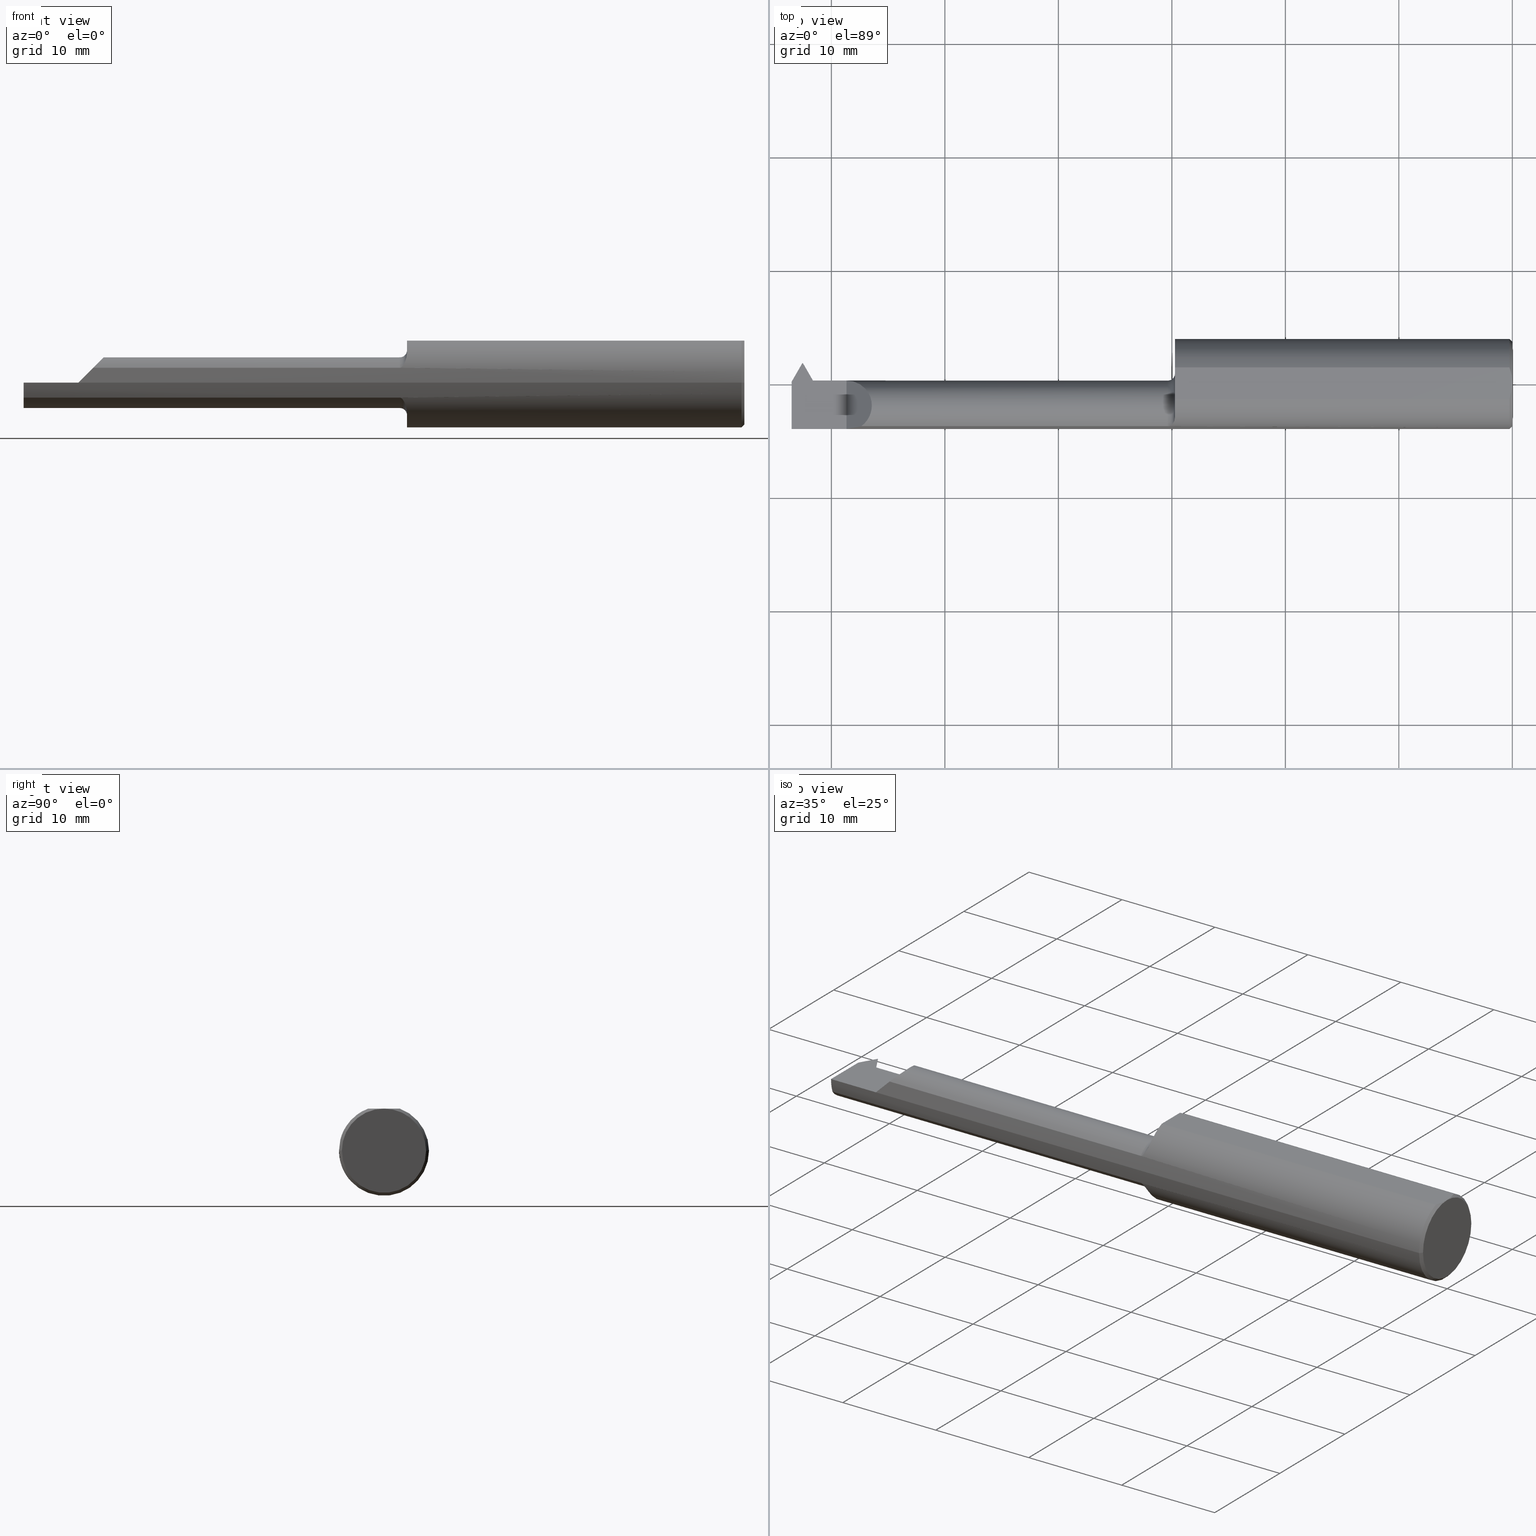
[diagram: canonical four-view strip — front | top / right | iso, engineering-drawing reading convention]
A machine part, canonical four-view strip (front | top / right | iso — engineering-drawing reading convention). The complete STEP part file that produces these views, byte-faithful:
ISO-10303-21;
HEADER;
FILE_DESCRIPTION (( 'STEP AP203' ),
    '1' );
FILE_NAME ('231792-LHTT2301250.STEP',
    '2025-01-23T22:19:12',
    ( '' ),
    ( '' ),
    'SwSTEP 2.0',
    'SolidWorks 2024',
    '' );
FILE_SCHEMA (( 'CONFIG_CONTROL_DESIGN' ));
ENDSEC;

DATA;
#1 = DIRECTION ( 'NONE',  ( 1.000000000000000000, 1.224646799147352961E-16, -0.000000000000000000 ) ) ;
#2 = AXIS2_PLACEMENT_3D ( 'NONE', #761, #17, #563 ) ;
#3 = ORIENTED_EDGE ( 'NONE', *, *, #285, .T. ) ;
#4 = PERSON_AND_ORGANIZATION_ROLE ( 'creator' ) ;
#5 = CARTESIAN_POINT ( 'NONE',  ( -1.188181177459758375, -0.1461969813683944575, 0.05472577389936161135 ) ) ;
#6 = CARTESIAN_POINT ( 'NONE',  ( -2.500000000000000000, 0.01189999999999989504, 8.875653457662611807E-19 ) ) ;
#7 = ADVANCED_FACE ( 'NONE', ( #716 ), #581, .F. ) ;
#8 = EDGE_LOOP ( 'NONE', ( #854, #38, #601, #480 ) ) ;
#9 = AXIS2_PLACEMENT_3D ( 'NONE', #339, #773, #42 ) ;
#10 = CARTESIAN_POINT ( 'NONE',  ( -1.185083227087313507, -0.1449949082926790811, 0.05786810286899488065 ) ) ;
#11 = DIRECTION ( 'NONE',  ( 0.5000000000000074385, -0.8660254037844342667, 0.000000000000000000 ) ) ;
#12 = EDGE_CURVE ( 'NONE', #552, #257, #587, .T. ) ;
#13 = ORIENTED_EDGE ( 'NONE', *, *, #360, .T. ) ;
#14 = CARTESIAN_POINT ( 'NONE',  ( -1.189346208252527015, -0.1465601710296003668, -0.05373964015989929344 ) ) ;
#15 = DIRECTION ( 'NONE',  ( -0.5000000000000160982, 0.000000000000000000, -0.8660254037844292707 ) ) ;
#16 = ORIENTED_EDGE ( 'NONE', *, *, #360, .F. ) ;
#17 = DIRECTION ( 'NONE',  ( 1.000000000000000000, 1.224646799147352961E-16, -0.000000000000000000 ) ) ;
#18 = CARTESIAN_POINT ( 'NONE',  ( -2.421108983848621943, 0.01189999999999979963, 0.000000000000000000 ) ) ;
#19 = AXIS2_PLACEMENT_3D ( 'NONE', #29, #431, #696 ) ;
#20 = ORIENTED_EDGE ( 'NONE', *, *, #451, .F. ) ;
#21 = VECTOR ( 'NONE', #859, 39.37007874015748854 ) ;
#22 = ADVANCED_FACE ( 'NONE', ( #452 ), #330, .T. ) ;
#23 = CARTESIAN_POINT ( 'NONE',  ( -1.170000000000000151, -0.1142537450715592345, -0.1063639588254146062 ) ) ;
#24 = CARTESIAN_POINT ( 'NONE',  ( -2.500000000000000000, -0.1561000000000000720, 8.875653457662609881E-19 ) ) ;
#25 = ORIENTED_EDGE ( 'NONE', *, *, #247, .F. ) ;
#26 = CARTESIAN_POINT ( 'NONE',  ( 6.904318952737417485E-16, 0.009396510398413217627, 0.1461000000000000631 ) ) ;
#27 = CC_DESIGN_PERSON_AND_ORGANIZATION_ASSIGNMENT ( #746, #337, ( #674 ) ) ;
#28 = ADVANCED_FACE ( 'NONE', ( #464 ), #726, .F. ) ;
#29 = CARTESIAN_POINT ( 'NONE',  ( -1.170000000000000151, 1.016456843292302760E-16, 0.000000000000000000 ) ) ;
#30 = EDGE_LOOP ( 'NONE', ( #501, #145, #538, #405 ) ) ;
#31 = VECTOR ( 'NONE', #300, 39.37007874015748143 ) ;
#32 = PLANE ( 'NONE',  #258 ) ;
#33 = DIRECTION ( 'NONE',  ( -1.000000000000000000, -1.301231752219315598E-17, -0.000000000000000000 ) ) ;
#34 = VERTEX_POINT ( 'NONE', #251 ) ;
#35 = DIRECTION ( 'NONE',  ( 1.224646799147352961E-16, -1.000000000000000000, -5.720810840667189241E-34 ) ) ;
#36 = CC_DESIGN_APPROVAL ( #350, ( #674 ) ) ;
#37 = CARTESIAN_POINT ( 'NONE',  ( -2.258241905890881807, -0.1472695137976346991, 0.05175809410911773323 ) ) ;
#38 = ORIENTED_EDGE ( 'NONE', *, *, #774, .F. ) ;
#39 = EDGE_CURVE ( 'NONE', #643, #281, #121, .T. ) ;
#40 = PERSON_AND_ORGANIZATION ( #783, #701 ) ;
#41 = DIRECTION ( 'NONE',  ( 0.5000000000000062172, -0.8660254037844350439, -7.288689336845252781E-15 ) ) ;
#42 = DIRECTION ( 'NONE',  ( -1.230512889522860364E-16, 1.000000000000000000, 0.000000000000000000 ) ) ;
#43 = CARTESIAN_POINT ( 'NONE',  ( -2.421108983848621943, -0.07610000000000008424, 0.000000000000000000 ) ) ;
#44 = DIRECTION ( 'NONE',  ( 1.000000000000000000, 0.000000000000000000, -0.000000000000000000 ) ) ;
#45 = VERTEX_POINT ( 'NONE', #320 ) ;
#46 = AXIS2_PLACEMENT_3D ( 'NONE', #183, #109, #652 ) ;
#47 = CARTESIAN_POINT ( 'NONE',  ( -2.488969632988080628E-16, 0.01190000000005054549, 0.000000000000000000 ) ) ;
#48 = CARTESIAN_POINT ( 'NONE',  ( -1.819714732526711343, -1.050612790672645458, -0.03000000000000922762 ) ) ;
#49 = CIRCLE ( 'NONE', #135, 0.08799999999999996714 ) ;
#50 = ORIENTED_EDGE ( 'NONE', *, *, #335, .F. ) ;
#51 = ADVANCED_FACE ( 'NONE', ( #400 ), #712, .T. ) ;
#52 = APPLICATION_PROTOCOL_DEFINITION ( 'international standard', 'config_control_design', 1994, #662 ) ;
#53 = CARTESIAN_POINT ( 'NONE',  ( 9.558368267345076472E-18, 2.449293598294705921E-16, 0.000000000000000000 ) ) ;
#54 = APPROVAL ( #594, 'UNSPECIFIED' ) ;
#55 = ORIENTED_EDGE ( 'NONE', *, *, #812, .T. ) ;
#56 = ORIENTED_EDGE ( 'NONE', *, *, #500, .F. ) ;
#57 = DATE_AND_TIME ( #661, #178 ) ;
#58 = DIRECTION ( 'NONE',  ( 1.224646799147319927E-16, -1.000000000000000000, 0.000000000000000000 ) ) ;
#59 = CARTESIAN_POINT ( 'NONE',  ( -2.413632881043807465, 0.007084169345407169416, -0.02871226167188161912 ) ) ;
#60 = ADVANCED_FACE ( 'NONE', ( #596 ), #455, .F. ) ;
#61 = VECTOR ( 'NONE', #734, 39.37007874015748143 ) ;
#62 = CARTESIAN_POINT ( 'NONE',  ( -2.500000000000000000, -0.2500000000000000000, 8.875653457662611807E-19 ) ) ;
#63 = CARTESIAN_POINT ( 'NONE',  ( -0.0009113193687663462966, -0.01867274705588926886, 0.1460999999999999799 ) ) ;
#64 = AXIS2_PLACEMENT_3D ( 'NONE', #197, #804, #809 ) ;
#65 = ORIENTED_EDGE ( 'NONE', *, *, #287, .T. ) ;
#66 = EDGE_CURVE ( 'NONE', #243, #345, #117, .T. ) ;
#67 = FACE_OUTER_BOUND ( 'NONE', #585, .T. ) ;
#68 = DIRECTION ( 'NONE',  ( -1.000000000000000000, -1.301231752219315598E-17, -0.000000000000000000 ) ) ;
#69 = ORIENTED_EDGE ( 'NONE', *, *, #718, .F. ) ;
#70 = PERSON_AND_ORGANIZATION_ROLE ( 'design_supplier' ) ;
#71 = CARTESIAN_POINT ( 'NONE',  ( -2.421108983848621943, 0.01189999999999979963, -0.08799999999999999489 ) ) ;
#72 = DIRECTION ( 'NONE',  ( 1.000000000000000000, 1.553500558300393113E-17, -0.000000000000000000 ) ) ;
#73 = VERTEX_POINT ( 'NONE', #731 ) ;
#74 = DIRECTION ( 'NONE',  ( 0.4999999999999905076, 0.8660254037844440367, -1.539562105255997719E-14 ) ) ;
#75 = CARTESIAN_POINT ( 'NONE',  ( -2.460717056391643176, 0.07238371841597715517, 0.001329005425271832797 ) ) ;
#76 = VERTEX_POINT ( 'NONE', #664 ) ;
#77 = CARTESIAN_POINT ( 'NONE',  ( -1.808054491924311113, -0.1472695137976346436, -0.05175809410911783731 ) ) ;
#78 = CARTESIAN_POINT ( 'NONE',  ( -2.310000000000000053, -0.2500000000000000000, 0.000000000000000000 ) ) ;
#79 = ADVANCED_BREP_SHAPE_REPRESENTATION ( '231792-LHTT2301250', ( #302, #534 ), #373 ) ;
#80 = VERTEX_POINT ( 'NONE', #59 ) ;
#81 = CARTESIAN_POINT ( 'NONE',  ( -2.258241905890881807, -0.1472695137976346991, 0.05175809410911773323 ) ) ;
#82 = CARTESIAN_POINT ( 'NONE',  ( -1.195000000000000284, -0.1472695137976347268, 0.05175809410911789282 ) ) ;
#83 = ORIENTED_EDGE ( 'NONE', *, *, #39, .F. ) ;
#84 = EDGE_CURVE ( 'NONE', #274, #520, #120, .T. ) ;
#85 = CARTESIAN_POINT ( 'NONE',  ( -1.173462366684950187, -0.1324922991513197423, -0.08274570526434620044 ) ) ;
#86 = EDGE_CURVE ( 'NONE', #257, #412, #509, .T. ) ;
#87 = FACE_OUTER_BOUND ( 'NONE', #855, .T. ) ;
#88 = VECTOR ( 'NONE', #772, 39.37007874015748143 ) ;
#89 = ORIENTED_EDGE ( 'NONE', *, *, #656, .F. ) ;
#90 = EDGE_CURVE ( 'NONE', #325, #111, #348, .T. ) ;
#91 = AXIS2_PLACEMENT_3D ( 'NONE', #738, #493, #545 ) ;
#92 = LINE ( 'NONE', #77, #380 ) ;
#93 = DIRECTION ( 'NONE',  ( -0.5000000000000094369, 0.8660254037844332675, 0.000000000000000000 ) ) ;
#94 = AXIS2_PLACEMENT_3D ( 'NONE', #550, #216, #353 ) ;
#95 = EDGE_LOOP ( 'NONE', ( #107, #336, #189, #299 ) ) ;
#96 = CARTESIAN_POINT ( 'NONE',  ( -2.399999999999999911, -0.07610000000000007037, -0.08799999999999992550 ) ) ;
#97 = EDGE_CURVE ( 'NONE', #810, #826, #283, .T. ) ;
#98 = DIRECTION ( 'NONE',  ( 0.000000000000000000, 0.7071067811865539010, 0.7071067811865411334 ) ) ;
#99 = ORIENTED_EDGE ( 'NONE', *, *, #218, .F. ) ;
#100 = DIRECTION ( 'NONE',  ( -1.230512889522860364E-16, 1.000000000000000000, 0.000000000000000000 ) ) ;
#101 = DIRECTION ( 'NONE',  ( 1.000000000000000000, 1.224646799147352961E-16, -0.000000000000000000 ) ) ;
#102 = VERTEX_POINT ( 'NONE', #614 ) ;
#103 = AXIS2_PLACEMENT_3D ( 'NONE', #391, #711, #314 ) ;
#104 = CARTESIAN_POINT ( 'NONE',  ( -2.500000000000000000, -6.123233995736767268E-17, 0.000000000000000000 ) ) ;
#105 = APPROVAL_PERSON_ORGANIZATION ( #793, #378, #276 ) ;
#106 = DIRECTION ( 'NONE',  ( 0.000000000000000000, 1.000000000000000000, 0.000000000000000000 ) ) ;
#107 = ORIENTED_EDGE ( 'NONE', *, *, #540, .T. ) ;
#108 = CARTESIAN_POINT ( 'NONE',  ( -2.421108983848621943, 0.01189999999999981004, 0.000000000000000000 ) ) ;
#109 = DIRECTION ( 'NONE',  ( 1.098490779351301254E-17, -0.7071067811865513475, 0.7071067811865437980 ) ) ;
#110 = CARTESIAN_POINT ( 'NONE',  ( -2.500000000000000000, -6.123233995736767268E-17, 0.000000000000000000 ) ) ;
#111 = VERTEX_POINT ( 'NONE', #680 ) ;
#112 = EDGE_CURVE ( 'NONE', #231, #80, #49, .T. ) ;
#113 = VECTOR ( 'NONE', #574, 39.37007874015748143 ) ;
#114 =( LENGTH_UNIT ( ) NAMED_UNIT ( * ) SI_UNIT ( $, .METRE. ) );
#115 = FACE_OUTER_BOUND ( 'NONE', #95, .T. ) ;
#116 = ADVANCED_FACE ( 'NONE', ( #201 ), #799, .F. ) ;
#117 = LINE ( 'NONE', #518, #21 ) ;
#118 = LENGTH_MEASURE_WITH_UNIT ( LENGTH_MEASURE( 0.02539999999999999897 ), #114 );
#119 = DIRECTION ( 'NONE',  ( 0.000000000000000000, 1.000000000000000000, 1.414195192744475008E-16 ) ) ;
#120 = CIRCLE ( 'NONE', #9, 0.1561000000000000165 ) ;
#121 = LINE ( 'NONE', #791, #398 ) ;
#122 = ORIENTED_EDGE ( 'NONE', *, *, #836, .F. ) ;
#123 = ORIENTED_EDGE ( 'NONE', *, *, #868, .F. ) ;
#124 = EDGE_CURVE ( 'NONE', #261, #76, #438, .T. ) ;
#125 =( BOUNDED_CURVE ( )  B_SPLINE_CURVE ( 3, ( #179, #322, #245, #37 ),
 .UNSPECIFIED., .F., .T. ) 
 B_SPLINE_CURVE_WITH_KNOTS ( ( 4, 4 ),
 ( 1.570796326794896558, 4.083606959790377466 ),
 .UNSPECIFIED. ) 
 CURVE ( )  GEOMETRIC_REPRESENTATION_ITEM ( )  RATIONAL_B_SPLINE_CURVE ( ( 1.000000000000000000, 0.5394915924057044343, 0.5394915924057044343, 1.000000000000000000 ) ) 
 REPRESENTATION_ITEM ( '' )  );
#126 = CALENDAR_DATE ( 2025, 23, 1 ) ;
#127 = DIRECTION ( 'NONE',  ( 1.170908343306095457E-14, -0.7071067811865436870, -0.7071067811865513475 ) ) ;
#128 = VECTOR ( 'NONE', #127, 39.37007874015748143 ) ;
#129 = CARTESIAN_POINT ( 'NONE',  ( -2.500000000000000000, -0.07610000000000008424, 0.000000000000000000 ) ) ;
#130 = EDGE_CURVE ( 'NONE', #73, #835, #473, .T. ) ;
#131 = SECURITY_CLASSIFICATION_LEVEL ( 'unclassified' ) ;
#132 = AXIS2_PLACEMENT_3D ( 'NONE', #166, #441, #98 ) ;
#133 = CARTESIAN_POINT ( 'NONE',  ( -1.191954860809189887, -0.1470959542221375871, 0.05225537509141417458 ) ) ;
#134 = DIRECTION ( 'NONE',  ( 1.000000000000000000, -0.000000000000000000, 0.000000000000000000 ) ) ;
#135 = AXIS2_PLACEMENT_3D ( 'NONE', #556, #134, #606 ) ;
#136 = PRODUCT_DEFINITION_SHAPE ( 'NONE', 'NONE',  #741 ) ;
#137 = ORIENTED_EDGE ( 'NONE', *, *, #873, .F. ) ;
#138 = CARTESIAN_POINT ( 'NONE',  ( -2.481122797377521838, -0.02926373109667449249, -0.08799999999999999489 ) ) ;
#139 = CARTESIAN_POINT ( 'NONE',  ( -2.461493645008453690, 0.06098089297201456094, -0.02999999999999948888 ) ) ;
#140 = ORIENTED_EDGE ( 'NONE', *, *, #439, .F. ) ;
#141 = APPROVAL_STATUS ( 'not_yet_approved' ) ;
#142 = LINE ( 'NONE', #138, #670 ) ;
#143 = CARTESIAN_POINT ( 'NONE',  ( -0.006903212852520313608, -0.04617911398309882537, 0.1461000000000000354 ) ) ;
#144 = CONICAL_SURFACE ( 'NONE', #637, 0.1461000000000006183, 0.7853981633974638221 ) ;
#145 = ORIENTED_EDGE ( 'NONE', *, *, #168, .F. ) ;
#146 = DIRECTION ( 'NONE',  ( 1.000000000000000000, 1.553500558300393113E-17, -0.000000000000000000 ) ) ;
#147 = VECTOR ( 'NONE', #308, 39.37007874015748143 ) ;
#148 = LINE ( 'NONE', #75, #206 ) ;
#149 = VERTEX_POINT ( 'NONE', #270 ) ;
#150 = APPROVAL_PERSON_ORGANIZATION ( #443, #54, #857 ) ;
#151 = CARTESIAN_POINT ( 'NONE',  ( -0.009999999999999073866, 0.05497272050753925637, 0.1461000000000000076 ) ) ;
#152 = FACE_OUTER_BOUND ( 'NONE', #167, .T. ) ;
#153 = EDGE_CURVE ( 'NONE', #45, #779, #453, .T. ) ;
#154 = ORIENTED_EDGE ( 'NONE', *, *, #285, .F. ) ;
#155 = EDGE_CURVE ( 'NONE', #345, #354, #416, .T. ) ;
#156 = DIRECTION ( 'NONE',  ( 1.000000000000000000, 1.301231752219315598E-17, 0.000000000000000000 ) ) ;
#157 = DIRECTION ( 'NONE',  ( 0.000000000000000000, 1.000000000000000000, 0.000000000000000000 ) ) ;
#158 = ADVANCED_FACE ( 'NONE', ( #205 ), #870, .T. ) ;
#159 = ORIENTED_EDGE ( 'NONE', *, *, #472, .T. ) ;
#160 = FACE_OUTER_BOUND ( 'NONE', #627, .T. ) ;
#161 = CARTESIAN_POINT ( 'NONE',  ( -2.411877202622478400, -0.08295730613130793130, -0.08799999999999999489 ) ) ;
#162 = AXIS2_PLACEMENT_3D ( 'NONE', #768, #379, #575 ) ;
#163 = EDGE_LOOP ( 'NONE', ( #315, #409, #707, #508 ) ) ;
#164 = VECTOR ( 'NONE', #11, 39.37007874015748854 ) ;
#165 = CARTESIAN_POINT ( 'NONE',  ( -1.176939195357871171, -0.1382843393702949397, -0.07265330384103622918 ) ) ;
#166 = CARTESIAN_POINT ( 'NONE',  ( -2.429632881043807480, 0.6503230061517655258, 0.6145265751344650695 ) ) ;
#167 = EDGE_LOOP ( 'NONE', ( #744, #334, #69, #222, #607, #474, #236, #660 ) ) ;
#168 = EDGE_CURVE ( 'NONE', #73, #102, #148, .T. ) ;
#169 = DIRECTION ( 'NONE',  ( 1.000000000000000000, 0.000000000000000000, 0.000000000000000000 ) ) ;
#170 = CYLINDRICAL_SURFACE ( 'NONE', #203, 0.1561000000000000165 ) ;
#171 = ORIENTED_EDGE ( 'NONE', *, *, #590, .T. ) ;
#172 = LINE ( 'NONE', #390, #592 ) ;
#173 = LINE ( 'NONE', #404, #175 ) ;
#174 = CARTESIAN_POINT ( 'NONE',  ( -2.399999999999999911, 0.07189999999999992231, 8.875653457662611807E-19 ) ) ;
#175 = VECTOR ( 'NONE', #448, 39.37007874015748143 ) ;
#176 = PERSON_AND_ORGANIZATION_ROLE ( 'design_owner' ) ;
#177 = AXIS2_PLACEMENT_3D ( 'NONE', #693, #631, #226 ) ;
#178 = LOCAL_TIME ( 14, 19, 12.00000000000000000, #736 ) ;
#179 = CARTESIAN_POINT ( 'NONE',  ( -2.310000000000000053, 0.01189999999999987769, 0.000000000000000000 ) ) ;
#180 = VERTEX_POINT ( 'NONE', #411 ) ;
#181 = EDGE_CURVE ( 'NONE', #180, #304, #408, .T. ) ;
#182 = DIRECTION ( 'NONE',  ( 0.000000000000000000, -0.1993679344171976064, -0.9799247046208294787 ) ) ;
#183 = CARTESIAN_POINT ( 'NONE',  ( -2.399999999999999911, 0.06098089297201405440, -0.02999999999999999542 ) ) ;
#184 = DIRECTION ( 'NONE',  ( 1.459813011021671841E-17, -0.9396926207859104263, 0.3420201433256631618 ) ) ;
#185 = EDGE_CURVE ( 'NONE', #702, #354, #425, .T. ) ;
#186 = CARTESIAN_POINT ( 'NONE',  ( -2.258241905890881807, -0.1472695137976346991, 0.05175809410911773323 ) ) ;
#187 = DIRECTION ( 'NONE',  ( 1.000000000000000000, 2.091571120149166951E-14, 0.000000000000000000 ) ) ;
#188 = DIRECTION ( 'NONE',  ( 0.000000000000000000, -0.3420201433256631063, -0.9396926207859103153 ) ) ;
#189 = ORIENTED_EDGE ( 'NONE', *, *, #562, .T. ) ;
#190 = DATE_TIME_ROLE ( 'classification_date' ) ;
#191 = ADVANCED_FACE ( 'NONE', ( #537 ), #735, .T. ) ;
#192 = LINE ( 'NONE', #48, #698 ) ;
#193 = DIRECTION ( 'NONE',  ( -1.224646799147352961E-16, 1.000000000000000000, 0.000000000000000000 ) ) ;
#194 = ORIENTED_EDGE ( 'NONE', *, *, #536, .F. ) ;
#195 = APPROVAL_ROLE ( '' ) ;
#196 = CARTESIAN_POINT ( 'NONE',  ( -2.292330217250612812, -0.1561000000000000443, 0.01766978274938703006 ) ) ;
#197 = CARTESIAN_POINT ( 'NONE',  ( -1.170000000000000151, 1.016456843292302760E-16, 0.000000000000000000 ) ) ;
#198 = ORIENTED_EDGE ( 'NONE', *, *, #798, .T. ) ;
#199 = DATE_TIME_ROLE ( 'creation_date' ) ;
#200 = DIRECTION ( 'NONE',  ( -1.000000000000000000, -1.224646799147319927E-16, 0.000000000000000000 ) ) ;
#201 = FACE_OUTER_BOUND ( 'NONE', #532, .T. ) ;
#202 = ORIENTED_EDGE ( 'NONE', *, *, #244, .T. ) ;
#203 = AXIS2_PLACEMENT_3D ( 'NONE', #709, #101, #106 ) ;
#204 = LINE ( 'NONE', #549, #128 ) ;
#205 = FACE_OUTER_BOUND ( 'NONE', #396, .T. ) ;
#206 = VECTOR ( 'NONE', #279, 39.37007874015748854 ) ;
#207 = ORIENTED_EDGE ( 'NONE', *, *, #623, .T. ) ;
#208 = AXIS2_PLACEMENT_3D ( 'NONE', #213, #68, #359 ) ;
#209 = PERSON_AND_ORGANIZATION ( #783, #701 ) ;
#210 = EDGE_CURVE ( 'NONE', #619, #643, #466, .T. ) ;
#211 = DIRECTION ( 'NONE',  ( -4.671396556664535003E-18, 0.000000000000000000, -1.000000000000000000 ) ) ;
#212 = AXIS2_PLACEMENT_3D ( 'NONE', #104, #457, #724 ) ;
#213 = CARTESIAN_POINT ( 'NONE',  ( -2.500000000000000000, -0.07610000000000008424, 0.000000000000000000 ) ) ;
#214 = ORIENTED_EDGE ( 'NONE', *, *, #433, .T. ) ;
#215 = CC_DESIGN_PERSON_AND_ORGANIZATION_ASSIGNMENT ( #533, #70, ( #296 ) ) ;
#216 = DIRECTION ( 'NONE',  ( 0.9799247046208295897, 1.275109140436757286E-17, 0.1993679344171976342 ) ) ;
#217 = ORIENTED_EDGE ( 'NONE', *, *, #97, .T. ) ;
#218 = EDGE_CURVE ( 'NONE', #815, #102, #356, .T. ) ;
#219 = CARTESIAN_POINT ( 'NONE',  ( -0.006876379561361965764, 0.04610291843171875070, 0.1461000000000000354 ) ) ;
#220 = AXIS2_PLACEMENT_3D ( 'NONE', #43, #387, #463 ) ;
#221 = DIRECTION ( 'NONE',  ( 1.301231752219315598E-17, -1.000000000000000000, 0.000000000000000000 ) ) ;
#222 = ORIENTED_EDGE ( 'NONE', *, *, #577, .T. ) ;
#223 = LOCAL_TIME ( 14, 19, 12.00000000000000000, #733 ) ;
#224 = DIRECTION ( 'NONE',  ( -6.842104469694102049E-17, 0.3768974211598659640, 0.9262550048032359706 ) ) ;
#225 = EDGE_CURVE ( 'NONE', #111, #619, #234, .T. ) ;
#226 = DIRECTION ( 'NONE',  ( 0.000000000000000000, -1.000000000000000000, 0.000000000000000000 ) ) ;
#227 = ORIENTED_EDGE ( 'NONE', *, *, #321, .F. ) ;
#228 = FACE_OUTER_BOUND ( 'NONE', #294, .T. ) ;
#229 = LINE ( 'NONE', #24, #324 ) ;
#230 = VECTOR ( 'NONE', #407, 39.37007874015748143 ) ;
#231 = VERTEX_POINT ( 'NONE', #293 ) ;
#232 = B_SPLINE_CURVE_WITH_KNOTS ( 'NONE', 3,
 ( #430, #238, #506, #14, #824, #695, #620, #755, #165, #85, #371, #629, #687, #23 ),
 .UNSPECIFIED., .F., .F.,
 ( 4, 2, 2, 2, 2, 2, 4 ),
 ( 1.961733332154579801E-07, 0.0001163117065468489460, 0.0002324272397604824393, 0.0004646583061877496428, 0.0009291204390422889287, 0.001393582571896828269, 0.001858044704751367826 ),
 .UNSPECIFIED. ) ;
#233 = DIRECTION ( 'NONE',  ( 0.4999999999999878431, 0.8660254037844455910, 0.000000000000000000 ) ) ;
#234 = B_SPLINE_CURVE_WITH_KNOTS ( 'NONE', 3,
 ( #671, #143, #621, #63, #421, #618 ),
 .UNSPECIFIED., .F., .F.,
 ( 4, 2, 4 ),
 ( 0.001497827971916989567, 0.002206109860466244632, 0.002914391749015499914 ),
 .UNSPECIFIED. ) ;
#235 = LINE ( 'NONE', #565, #673 ) ;
#236 = ORIENTED_EDGE ( 'NONE', *, *, #656, .T. ) ;
#237 = AXIS2_PLACEMENT_3D ( 'NONE', #129, #72, #478 ) ;
#238 = CARTESIAN_POINT ( 'NONE',  ( -1.193446618368615209, -0.1472695137976344215, -0.05175809410911828834 ) ) ;
#239 = DIRECTION ( 'NONE',  ( -0.1423964981743713332, 0.6999011492016904423, 0.6999011492016776748 ) ) ;
#240 = EDGE_LOOP ( 'NONE', ( #650, #566, #494 ) ) ;
#241 = LINE ( 'NONE', #588, #553 ) ;
#242 = LINE ( 'NONE', #516, #341 ) ;
#243 = VERTEX_POINT ( 'NONE', #445 ) ;
#244 = EDGE_CURVE ( 'NONE', #779, #381, #564, .T. ) ;
#245 = CARTESIAN_POINT ( 'NONE',  ( -2.174606210947998441, -0.08644537803012217192, 0.1353937890520004739 ) ) ;
#246 = CARTESIAN_POINT ( 'NONE',  ( -1.814428886733931101, -1.047561006181289001, 0.000000000000000000 ) ) ;
#247 = EDGE_CURVE ( 'NONE', #243, #757, #235, .T. ) ;
#248 = ORIENTED_EDGE ( 'NONE', *, *, #590, .F. ) ;
#249 = AXIS2_PLACEMENT_3D ( 'NONE', #849, #527, #193 ) ;
#250 = DIRECTION ( 'NONE',  ( -1.000000000000000000, -1.301231752219315598E-17, -0.000000000000000000 ) ) ;
#251 = CARTESIAN_POINT ( 'NONE',  ( -1.170000000000000151, -0.1142537450715740699, 0.1063639588254092772 ) ) ;
#252 = VECTOR ( 'NONE', #462, 39.37007874015748854 ) ;
#253 = DIRECTION ( 'NONE',  ( 1.000000000000000000, 1.224646799147352961E-16, -0.000000000000000000 ) ) ;
#254 = CARTESIAN_POINT ( 'NONE',  ( -2.500000000000000000, 0.6405665699908968946, 0.6145265751344650695 ) ) ;
#255 = ORIENTED_EDGE ( 'NONE', *, *, #836, .T. ) ;
#256 = ADVANCED_FACE ( 'NONE', ( #830 ), #559, .T. ) ;
#257 = VERTEX_POINT ( 'NONE', #756 ) ;
#258 = AXIS2_PLACEMENT_3D ( 'NONE', #767, #366, #233 ) ;
#259 = CARTESIAN_POINT ( 'NONE',  ( -2.421108983848621943, -0.04738773832811973147, -0.08318416934540759367 ) ) ;
#260 = CARTESIAN_POINT ( 'NONE',  ( -1.170000000000000151, 0.05497272050753924943, 0.1461000000000000354 ) ) ;
#261 = VERTEX_POINT ( 'NONE', #82 ) ;
#262 = ORIENTED_EDGE ( 'NONE', *, *, #86, .F. ) ;
#263 = AXIS2_PLACEMENT_3D ( 'NONE', #53, #858, #530 ) ;
#264 = APPROVAL_STATUS ( 'not_yet_approved' ) ;
#265 = CARTESIAN_POINT ( 'NONE',  ( -2.310000000000000053, -0.1561000000000000998, 0.000000000000000000 ) ) ;
#266 = VERTEX_POINT ( 'NONE', #436 ) ;
#267 = VERTEX_POINT ( 'NONE', #638 ) ;
#268 = COORDINATED_UNIVERSAL_TIME_OFFSET ( 8, 0, .BEHIND. ) ;
#269 = CARTESIAN_POINT ( 'NONE',  ( -1.179024368971148817, -0.1407725817217402864, 0.06766890069852188327 ) ) ;
#270 = CARTESIAN_POINT ( 'NONE',  ( -2.500000000000000000, 0.008247132821841942490, 0.000000000000000000 ) ) ;
#271 = ORIENTED_EDGE ( 'NONE', *, *, #90, .F. ) ;
#272 = FACE_OUTER_BOUND ( 'NONE', #284, .T. ) ;
#273 = CARTESIAN_POINT ( 'NONE',  ( -2.500000000000000000, 0.6405665699908968946, 0.6145265751344650695 ) ) ;
#274 = VERTEX_POINT ( 'NONE', #706 ) ;
#275 = EDGE_CURVE ( 'NONE', #80, #757, #822, .T. ) ;
#276 = APPROVAL_ROLE ( '' ) ;
#277 = CIRCLE ( 'NONE', #263, 0.1461000000000006183 ) ;
#278 = CARTESIAN_POINT ( 'NONE',  ( -1.173484131199146629, -0.1325297027135328987, 0.08268119770262059853 ) ) ;
#279 = DIRECTION ( 'NONE',  ( -0.02328694095508503786, -0.3419273951315133786, -0.9394377972167886615 ) ) ;
#280 = AXIS2_PLACEMENT_3D ( 'NONE', #522, #722, #468 ) ;
#281 = VERTEX_POINT ( 'NONE', #825 ) ;
#282 = CARTESIAN_POINT ( 'NONE',  ( -2.463250000000000384, 0.07189999999999988067, 0.000000000000000000 ) ) ;
#283 = LINE ( 'NONE', #688, #616 ) ;
#284 = EDGE_LOOP ( 'NONE', ( #681, #429, #845, #694, #612, #865, #787, #55 ) ) ;
#285 = EDGE_CURVE ( 'NONE', #266, #520, #499, .T. ) ;
#286 = CARTESIAN_POINT ( 'NONE',  ( 0.000000000000000000, 2.449293598294705921E-16, 0.000000000000000000 ) ) ;
#287 = EDGE_CURVE ( 'NONE', #412, #304, #507, .T. ) ;
#288 = DIRECTION ( 'NONE',  ( 1.000000000000000000, 1.301231752219315598E-17, 0.000000000000000000 ) ) ;
#289 = VECTOR ( 'NONE', #599, 39.37007874015748143 ) ;
#290 = ORIENTED_EDGE ( 'NONE', *, *, #181, .T. ) ;
#291 = EDGE_CURVE ( 'NONE', #325, #34, #685, .T. ) ;
#292 = CARTESIAN_POINT ( 'NONE',  ( -2.429632881043807480, 0.6503230061517655258, 0.6145265751344650695 ) ) ;
#293 = CARTESIAN_POINT ( 'NONE',  ( -2.413632881043807465, -0.04738773832811985637, -0.08318416934540769081 ) ) ;
#294 = EDGE_LOOP ( 'NONE', ( #137, #202, #505, #796 ) ) ;
#295 = AXIS2_PLACEMENT_3D ( 'NONE', #18, #288, #817 ) ;
#296 = PRODUCT_DEFINITION_FORMATION_WITH_SPECIFIED_SOURCE ( 'ANY', '', #611, .NOT_KNOWN. ) ;
#297 = DIRECTION ( 'NONE',  ( 1.224646799147319927E-16, -1.000000000000000000, 0.000000000000000000 ) ) ;
#298 = DIRECTION ( 'NONE',  ( -1.000000000000000000, -1.301231752219315598E-17, 0.000000000000000000 ) ) ;
#299 = ORIENTED_EDGE ( 'NONE', *, *, #625, .T. ) ;
#300 = DIRECTION ( 'NONE',  ( 0.000000000000000000, -0.7071067811865539010, -0.7071067811865411334 ) ) ;
#301 = DIRECTION ( 'NONE',  ( 0.000000000000000000, -1.000000000000000000, 0.000000000000000000 ) ) ;
#302 = MANIFOLD_SOLID_BREP ( 'Cut-Sweep1', #327 ) ;
#303 = VECTOR ( 'NONE', #492, 39.37007874015748143 ) ;
#304 = VERTEX_POINT ( 'NONE', #642 ) ;
#305 = DIMENSIONAL_EXPONENTS ( 1.000000000000000000, 0.000000000000000000, 0.000000000000000000, 0.000000000000000000, 0.000000000000000000, 0.000000000000000000, 0.000000000000000000 ) ;
#306 = ADVANCED_FACE ( 'NONE', ( #87 ), #368, .T. ) ;
#307 = LINE ( 'NONE', #292, #113 ) ;
#308 = DIRECTION ( 'NONE',  ( -0.7071067811865368036, 0.7071067811865583419, 8.659560562355067211E-17 ) ) ;
#309 = AXIS2_PLACEMENT_3D ( 'NONE', #655, #250, #782 ) ;
#310 = ORIENTED_EDGE ( 'NONE', *, *, #112, .T. ) ;
#311 =( BOUNDED_CURVE ( )  B_SPLINE_CURVE ( 3, ( #108, #318, #775, #720 ),
 .UNSPECIFIED., .F., .T. ) 
 B_SPLINE_CURVE_WITH_KNOTS ( ( 4, 4 ),
 ( 1.570796326794896780, 1.903157296839101287 ),
 .UNSPECIFIED. ) 
 CURVE ( )  GEOMETRIC_REPRESENTATION_ITEM ( )  RATIONAL_B_SPLINE_CURVE ( ( 1.000000000000000000, 0.9908158471105027454, 0.9908158471105027454, 1.000000000000000000 ) ) 
 REPRESENTATION_ITEM ( '' )  );
#312 = APPROVAL_PERSON_ORGANIZATION ( #482, #350, #195 ) ;
#313 =( CONVERSION_BASED_UNIT ( 'INCH', #118 ) LENGTH_UNIT ( ) NAMED_UNIT ( #305 ) );
#314 = DIRECTION ( 'NONE',  ( -0.7071067811865512365, 0.000000000000000000, -0.7071067811865436870 ) ) ;
#315 = ORIENTED_EDGE ( 'NONE', *, *, #451, .T. ) ;
#316 =( BOUNDED_CURVE ( )  B_SPLINE_CURVE ( 3, ( #265, #196, #829, #81 ),
 .UNSPECIFIED., .F., .T. ) 
 B_SPLINE_CURVE_WITH_KNOTS ( ( 4, 4 ),
 ( 4.712388980384689674, 5.050356325447890704 ),
 .UNSPECIFIED. ) 
 CURVE ( )  GEOMETRIC_REPRESENTATION_ITEM ( )  RATIONAL_B_SPLINE_CURVE ( ( 1.000000000000000000, 0.9905041350217796969, 0.9905041350217796969, 1.000000000000000000 ) ) 
 REPRESENTATION_ITEM ( '' )  );
#317 = EDGE_CURVE ( 'NONE', #552, #702, #229, .T. ) ;
#318 = CARTESIAN_POINT ( 'NONE',  ( -2.419116291096571558, 0.01189999999999990891, -0.009794397791003125672 ) ) ;
#319 = FACE_OUTER_BOUND ( 'NONE', #442, .T. ) ;
#320 = CARTESIAN_POINT ( 'NONE',  ( -1.170000000000000151, -0.1142537450715592345, -0.1063639588254146062 ) ) ;
#321 = EDGE_CURVE ( 'NONE', #719, #815, #504, .T. ) ;
#322 = CARTESIAN_POINT ( 'NONE',  ( -2.206585760359397685, 0.01189999999999990371, 0.1034142396406013964 ) ) ;
#323 = ORIENTED_EDGE ( 'NONE', *, *, #651, .F. ) ;
#324 = VECTOR ( 'NONE', #762, 39.37007874015748143 ) ;
#325 = VERTEX_POINT ( 'NONE', #496 ) ;
#326 = FACE_OUTER_BOUND ( 'NONE', #831, .T. ) ;
#327 = CLOSED_SHELL ( 'NONE', ( #554, #777, #374, #647, #841, #191, #256, #60, #444, #28, #827, #116, #713, #689, #568, #385, #475, #22, #691, #306, #479, #7, #491, #158, #51, #346 ) ) ;
#328 = CARTESIAN_POINT ( 'NONE',  ( -1.170000000000000151, 0.1811000000000001497, 0.1461000000000000354 ) ) ;
#329 = LOCAL_TIME ( 14, 19, 12.00000000000000000, #476 ) ;
#330 = PLANE ( 'NONE',  #249 ) ;
#331 = ORIENTED_EDGE ( 'NONE', *, *, #679, .T. ) ;
#332 =( NAMED_UNIT ( * ) SI_UNIT ( $, .STERADIAN. ) SOLID_ANGLE_UNIT ( ) );
#333 = PLANE ( 'NONE',  #46 ) ;
#334 = ORIENTED_EDGE ( 'NONE', *, *, #424, .T. ) ;
#335 = EDGE_CURVE ( 'NONE', #34, #45, #517, .T. ) ;
#336 = ORIENTED_EDGE ( 'NONE', *, *, #181, .F. ) ;
#337 = PERSON_AND_ORGANIZATION_ROLE ( 'classification_officer' ) ;
#338 = LINE ( 'NONE', #427, #31 ) ;
#339 = CARTESIAN_POINT ( 'NONE',  ( -0.009999999999999073866, 2.437047130303233649E-16, 0.000000000000000000 ) ) ;
#340 = ORIENTED_EDGE ( 'NONE', *, *, #582, .F. ) ;
#341 = VECTOR ( 'NONE', #187, 39.37007874015748143 ) ;
#342 = VECTOR ( 'NONE', #748, 39.37007874015748854 ) ;
#343 = DIRECTION ( 'NONE',  ( -1.000000000000000000, 0.000000000000000000, 4.671396556664535003E-18 ) ) ;
#344 = CARTESIAN_POINT ( 'NONE',  ( -2.462000000000000632, 0.7063845006785161029, 0.6145265751344650695 ) ) ;
#345 = VERTEX_POINT ( 'NONE', #572 ) ;
#346 = ADVANCED_FACE ( 'NONE', ( #152 ), #765, .T. ) ;
#347 = DIRECTION ( 'NONE',  ( 1.000000000000000000, 1.224646799147352961E-16, -0.000000000000000000 ) ) ;
#348 = LINE ( 'NONE', #795, #519 ) ;
#349 = EDGE_LOOP ( 'NONE', ( #486, #570, #310, #861, #123, #384, #437, #248, #615, #432, #788, #686 ) ) ;
#350 = APPROVAL ( #264, 'UNSPECIFIED' ) ;
#351 = EDGE_CURVE ( 'NONE', #635, #73, #511, .T. ) ;
#352 = CARTESIAN_POINT ( 'NONE',  ( -1.193447391068662933, -0.1472695137984707525, 0.05175809410673880978 ) ) ;
#353 = DIRECTION ( 'NONE',  ( 0.1993679344171976064, 0.000000000000000000, -0.9799247046208294787 ) ) ;
#354 = VERTEX_POINT ( 'NONE', #626 ) ;
#355 = CARTESIAN_POINT ( 'NONE',  ( -1.169999999999967066, -0.1183584908119259815, 0.1019547343237290626 ) ) ;
#356 = LINE ( 'NONE', #139, #342 ) ;
#357 = ORIENTED_EDGE ( 'NONE', *, *, #210, .F. ) ;
#358 = CARTESIAN_POINT ( 'NONE',  ( -2.500000000000000000, 0.05497272050753895106, 0.1461000000000000076 ) ) ;
#359 = DIRECTION ( 'NONE',  ( 0.000000000000000000, -1.000000000000000000, 0.000000000000000000 ) ) ;
#360 = EDGE_CURVE ( 'NONE', #281, #111, #653, .T. ) ;
#361 = ORIENTED_EDGE ( 'NONE', *, *, #66, .F. ) ;
#362 = DIRECTION ( 'NONE',  ( 1.224646799147319927E-16, -1.000000000000000000, 0.000000000000000000 ) ) ;
#363 = DIRECTION ( 'NONE',  ( 1.000000000000000000, 1.301231752219315598E-17, 0.000000000000000000 ) ) ;
#364 = VECTOR ( 'NONE', #510, 39.37007874015748143 ) ;
#365 = ORIENTED_EDGE ( 'NONE', *, *, #130, .F. ) ;
#366 = DIRECTION ( 'NONE',  ( 0.8486396879976075835, -0.4899623523104028600, 0.1993679344171976064 ) ) ;
#367 = CIRCLE ( 'NONE', #846, 0.1461000000000006183 ) ;
#368 = PLANE ( 'NONE',  #435 ) ;
#369 = ORIENTED_EDGE ( 'NONE', *, *, #90, .T. ) ;
#370 = AXIS2_PLACEMENT_3D ( 'NONE', #246, #600, #591 ) ;
#371 = CARTESIAN_POINT ( 'NONE',  ( -1.172196101700324178, -0.1292903952771553011, -0.08767256201919804148 ) ) ;
#372 = CARTESIAN_POINT ( 'NONE',  ( -1.170000000000000151, -0.07610000000000005649, 0.000000000000000000 ) ) ;
#373 =( GEOMETRIC_REPRESENTATION_CONTEXT ( 3 ) GLOBAL_UNCERTAINTY_ASSIGNED_CONTEXT ( ( #602 ) ) GLOBAL_UNIT_ASSIGNED_CONTEXT ( ( #313, #397, #332 ) ) REPRESENTATION_CONTEXT ( 'NONE', 'WORKASPACE' ) );
#374 = ADVANCED_FACE ( 'NONE', ( #383 ), #170, .T. ) ;
#375 = EDGE_LOOP ( 'NONE', ( #323, #207, #13, #271, #769, #388, #171 ) ) ;
#376 = B_SPLINE_CURVE_WITH_KNOTS ( 'NONE', 3,
 ( #633, #26, #558, #816, #219, #151 ),
 .UNSPECIFIED., .F., .F.,
 ( 4, 2, 4 ),
 ( 0.002914391749015499914, 0.003623333355014890598, 0.004332274961014280848 ),
 .UNSPECIFIED. ) ;
#377 = CYLINDRICAL_SURFACE ( 'NONE', #2, 0.1561000000000000165 ) ;
#378 = APPROVAL ( #141, 'UNSPECIFIED' ) ;
#379 = DIRECTION ( 'NONE',  ( -1.000000000000000000, -1.224646799147319927E-16, 0.000000000000000000 ) ) ;
#380 = VECTOR ( 'NONE', #156, 39.37007874015748143 ) ;
#381 = VERTEX_POINT ( 'NONE', #260 ) ;
#382 = PLANE ( 'NONE',  #487 ) ;
#383 = FACE_OUTER_BOUND ( 'NONE', #375, .T. ) ;
#384 = ORIENTED_EDGE ( 'NONE', *, *, #155, .T. ) ;
#385 = ADVANCED_FACE ( 'NONE', ( #395 ), #578, .F. ) ;
#386 = APPLICATION_PROTOCOL_DEFINITION ( 'international standard', 'config_control_design', 1994, #856 ) ;
#387 = DIRECTION ( 'NONE',  ( -1.000000000000000000, -1.301231752219315598E-17, -0.000000000000000000 ) ) ;
#388 = ORIENTED_EDGE ( 'NONE', *, *, #603, .T. ) ;
#389 = EDGE_CURVE ( 'NONE', #643, #266, #367, .T. ) ;
#390 = CARTESIAN_POINT ( 'NONE',  ( -2.500000000000000000, 0.1560999999999999333, 0.000000000000000000 ) ) ;
#391 = CARTESIAN_POINT ( 'NONE',  ( -2.310000000000000053, -0.2500000000000000000, 0.000000000000000000 ) ) ;
#392 = ORIENTED_EDGE ( 'NONE', *, *, #225, .T. ) ;
#393 = VECTOR ( 'NONE', #704, 39.37007874015748143 ) ;
#394 = ORIENTED_EDGE ( 'NONE', *, *, #582, .T. ) ;
#395 = FACE_OUTER_BOUND ( 'NONE', #805, .T. ) ;
#396 = EDGE_LOOP ( 'NONE', ( #523, #723, #597, #677 ) ) ;
#397 =( NAMED_UNIT ( * ) PLANE_ANGLE_UNIT ( ) SI_UNIT ( $, .RADIAN. ) );
#398 = VECTOR ( 'NONE', #649, 39.37007874015748854 ) ;
#399 = DIRECTION ( 'NONE',  ( -0.4999999999999907296, 0.000000000000000000, 0.8660254037844440367 ) ) ;
#400 = FACE_OUTER_BOUND ( 'NONE', #573, .T. ) ;
#401 = EDGE_CURVE ( 'NONE', #826, #739, #481, .T. ) ;
#402 = VERTEX_POINT ( 'NONE', #838 ) ;
#403 = DATE_AND_TIME ( #872, #329 ) ;
#404 = CARTESIAN_POINT ( 'NONE',  ( -2.442105574943187030, -0.01580690852369160890, -0.1361838062394665483 ) ) ;
#405 = ORIENTED_EDGE ( 'NONE', *, *, #433, .F. ) ;
#406 = DATE_AND_TIME ( #126, #223 ) ;
#407 = DIRECTION ( 'NONE',  ( 1.000000000000000000, 2.625795189209523141E-14, 2.625795189209475494E-14 ) ) ;
#408 = LINE ( 'NONE', #273, #851 ) ;
#409 = ORIENTED_EDGE ( 'NONE', *, *, #839, .T. ) ;
#410 = CARTESIAN_POINT ( 'NONE',  ( -3.241309669837331952E-33, 2.086455426436077518E-16, 0.1461000000000000354 ) ) ;
#411 = CARTESIAN_POINT ( 'NONE',  ( -2.500000000000000000, -0.003960005143579985523, -0.03000000000000030767 ) ) ;
#412 = VERTEX_POINT ( 'NONE', #715 ) ;
#413 = PRODUCT_RELATED_PRODUCT_CATEGORY ( 'detail', '', ( #611 ) ) ;
#414 = EDGE_CURVE ( 'NONE', #102, #819, #192, .T. ) ;
#415 = CARTESIAN_POINT ( 'NONE',  ( -1.172189633566586453, -0.1292798516107535878, 0.08769141204669662903 ) ) ;
#416 = LINE ( 'NONE', #6, #485 ) ;
#417 = ORIENTED_EDGE ( 'NONE', *, *, #751, .F. ) ;
#418 = APPROVAL_DATE_TIME ( #403, #54 ) ;
#419 = EDGE_CURVE ( 'NONE', #354, #823, #125, .T. ) ;
#420 = CARTESIAN_POINT ( 'NONE',  ( -2.500000000000000000, -0.1561000000000000720, 8.875653457662611807E-19 ) ) ;
#421 = CARTESIAN_POINT ( 'NONE',  ( 6.814946972475936967E-16, -0.009387766318748616556, 0.1461000000000000354 ) ) ;
#422 = EDGE_LOOP ( 'NONE', ( #99, #194, #639, #20 ) ) ;
#423 = LINE ( 'NONE', #567, #750 ) ;
#424 = EDGE_CURVE ( 'NONE', #810, #719, #513, .T. ) ;
#425 = LINE ( 'NONE', #78, #727 ) ;
#426 = ORIENTED_EDGE ( 'NONE', *, *, #812, .F. ) ;
#427 = CARTESIAN_POINT ( 'NONE',  ( -2.413632881043807465, 0.6503230061517655258, 0.6145265751344650695 ) ) ;
#428 = CARTESIAN_POINT ( 'NONE',  ( -2.500000000000000000, 0.07189999999999992231, 8.875653457662611807E-19 ) ) ;
#429 = ORIENTED_EDGE ( 'NONE', *, *, #317, .F. ) ;
#430 = CARTESIAN_POINT ( 'NONE',  ( -1.195000000000000284, -0.1472695137976347268, -0.05175809410911786507 ) ) ;
#431 = DIRECTION ( 'NONE',  ( 1.000000000000000000, 1.301231752219315598E-17, 0.000000000000000000 ) ) ;
#432 = ORIENTED_EDGE ( 'NONE', *, *, #771, .F. ) ;
#433 = EDGE_CURVE ( 'NONE', #819, #835, #173, .T. ) ;
#434 = CARTESIAN_POINT ( 'NONE',  ( -2.421108983848621943, -0.07610000000000007037, -0.08799999999999992550 ) ) ;
#435 = AXIS2_PLACEMENT_3D ( 'NONE', #833, #298, #221 ) ;
#436 = CARTESIAN_POINT ( 'NONE',  ( -8.333721468197824584E-18, 0.1461000000000008403, 1.850441313511654549E-17 ) ) ;
#437 = ORIENTED_EDGE ( 'NONE', *, *, #419, .T. ) ;
#438 = CIRCLE ( 'NONE', #91, 0.08800000000000007816 ) ;
#439 = EDGE_CURVE ( 'NONE', #835, #345, #242, .T. ) ;
#440 = CARTESIAN_POINT ( 'NONE',  ( -2.421108983848621943, -0.05220356898271225760, -0.08799999999999999489 ) ) ;
#441 = DIRECTION ( 'NONE',  ( 0.000000000000000000, 0.7071067811865411334, -0.7071067811865539010 ) ) ;
#442 = EDGE_LOOP ( 'NONE', ( #557, #369, #392, #198, #766 ) ) ;
#443 = PERSON_AND_ORGANIZATION ( #783, #701 ) ;
#444 = ADVANCED_FACE ( 'NONE', ( #725 ), #333, .F. ) ;
#445 = CARTESIAN_POINT ( 'NONE',  ( -2.415005414865911249, 0.005796431017289206851, -0.02999999999999943337 ) ) ;
#446 = AXIS2_PLACEMENT_3D ( 'NONE', #752, #200, #58 ) ;
#447 = ORIENTED_EDGE ( 'NONE', *, *, #112, .F. ) ;
#448 = DIRECTION ( 'NONE',  ( 0.1143501000964193132, 0.1980601832175917787, 0.9734969021171833159 ) ) ;
#449 = CC_DESIGN_SECURITY_CLASSIFICATION ( #674, ( #296 ) ) ;
#450 = AXIS2_PLACEMENT_3D ( 'NONE', #254, #526, #399 ) ;
#451 = EDGE_CURVE ( 'NONE', #102, #402, #645, .T. ) ;
#452 = FACE_OUTER_BOUND ( 'NONE', #240, .T. ) ;
#453 = CIRCLE ( 'NONE', #64, 0.1561000000000000165 ) ;
#454 = FACE_OUTER_BOUND ( 'NONE', #8, .T. ) ;
#455 = PLANE ( 'NONE',  #740 ) ;
#456 = ORIENTED_EDGE ( 'NONE', *, *, #225, .F. ) ;
#457 = DIRECTION ( 'NONE',  ( -1.000000000000000000, -1.224646799147352961E-16, 0.000000000000000000 ) ) ;
#458 = LINE ( 'NONE', #328, #818 ) ;
#459 = ORIENTED_EDGE ( 'NONE', *, *, #839, .F. ) ;
#460 = VECTOR ( 'NONE', #74, 39.37007874015748854 ) ;
#461 = ORIENTED_EDGE ( 'NONE', *, *, #751, .T. ) ;
#462 = DIRECTION ( 'NONE',  ( -0.02328694095509251452, 0.3419273951315133231, 0.9394377972167885504 ) ) ;
#463 = DIRECTION ( 'NONE',  ( 0.000000000000000000, -1.000000000000000000, 0.000000000000000000 ) ) ;
#464 = FACE_OUTER_BOUND ( 'NONE', #30, .T. ) ;
#465 = CC_DESIGN_PERSON_AND_ORGANIZATION_ASSIGNMENT ( #801, #4, ( #296 ) ) ;
#466 = CIRCLE ( 'NONE', #703, 0.1461000000000006183 ) ;
#467 = LINE ( 'NONE', #730, #61 ) ;
#468 = DIRECTION ( 'NONE',  ( -0.000000000000000000, 0.000000000000000000, 1.000000000000000000 ) ) ;
#469 = ORIENTED_EDGE ( 'NONE', *, *, #185, .F. ) ;
#470 = DATE_AND_TIME ( #604, #834 ) ;
#471 = PLANE ( 'NONE',  #666 ) ;
#472 = EDGE_CURVE ( 'NONE', #325, #381, #458, .T. ) ;
#473 = LINE ( 'NONE', #542, #164 ) ;
#474 = ORIENTED_EDGE ( 'NONE', *, *, #275, .F. ) ;
#475 = ADVANCED_FACE ( 'NONE', ( #319 ), #721, .F. ) ;
#476 = COORDINATED_UNIVERSAL_TIME_OFFSET ( 8, 0, .BEHIND. ) ;
#477 = DIRECTION ( 'NONE',  ( -1.000000000000000000, -1.301231752219315598E-17, -0.000000000000000000 ) ) ;
#478 = DIRECTION ( 'NONE',  ( 0.000000000000000000, -1.000000000000000000, 0.000000000000000000 ) ) ;
#479 = ADVANCED_FACE ( 'NONE', ( #454 ), #640, .F. ) ;
#480 = ORIENTED_EDGE ( 'NONE', *, *, #603, .F. ) ;
#481 = CIRCLE ( 'NONE', #220, 0.08799999999999988387 ) ;
#482 = PERSON_AND_ORGANIZATION ( #783, #701 ) ;
#483 = CARTESIAN_POINT ( 'NONE',  ( -1.170448686022199425, -0.1221823836830935872, 0.09733719174477610536 ) ) ;
#484 = DIRECTION ( 'NONE',  ( -0.000000000000000000, 1.000000000000000000, -0.000000000000000000 ) ) ;
#485 = VECTOR ( 'NONE', #489, 39.37007874015748143 ) ;
#486 = ORIENTED_EDGE ( 'NONE', *, *, #401, .F. ) ;
#487 = AXIS2_PLACEMENT_3D ( 'NONE', #47, #641, #182 ) ;
#488 = LINE ( 'NONE', #535, #230 ) ;
#489 = DIRECTION ( 'NONE',  ( 1.000000000000000000, 1.301231752219315598E-17, 0.000000000000000000 ) ) ;
#490 = EDGE_LOOP ( 'NONE', ( #340, #217, #728 ) ) ;
#491 = ADVANCED_FACE ( 'NONE', ( #115 ), #853, .T. ) ;
#492 = DIRECTION ( 'NONE',  ( 1.000000000000000000, 1.301231752219315598E-17, 0.000000000000000000 ) ) ;
#493 = DIRECTION ( 'NONE',  ( -1.000000000000000000, -1.301231752219315598E-17, -0.000000000000000000 ) ) ;
#494 = ORIENTED_EDGE ( 'NONE', *, *, #500, .T. ) ;
#495 = CARTESIAN_POINT ( 'NONE',  ( 0.000000000000000000, 2.449293598294705921E-16, 0.000000000000000000 ) ) ;
#496 = CARTESIAN_POINT ( 'NONE',  ( -1.170000000000000151, -0.05497272050753895800, 0.1461000000000000076 ) ) ;
#497 = ORIENTED_EDGE ( 'NONE', *, *, #351, .F. ) ;
#498 = LINE ( 'NONE', #96, #364 ) ;
#499 = LINE ( 'NONE', #700, #147 ) ;
#500 = EDGE_CURVE ( 'NONE', #266, #619, #277, .T. ) ;
#501 = ORIENTED_EDGE ( 'NONE', *, *, #414, .F. ) ;
#502 = CC_DESIGN_PERSON_AND_ORGANIZATION_ASSIGNMENT ( #40, #176, ( #611 ) ) ;
#503 = CARTESIAN_POINT ( 'NONE',  ( -1.170000000000000151, 0.1561000000000000998, 0.000000000000000000 ) ) ;
#504 = LINE ( 'NONE', #161, #863 ) ;
#505 = ORIENTED_EDGE ( 'NONE', *, *, #665, .F. ) ;
#506 = CARTESIAN_POINT ( 'NONE',  ( -1.191958743194513781, -0.1470959753313503260, -0.05225520737744659278 ) ) ;
#507 = LINE ( 'NONE', #759, #789 ) ;
#508 = ORIENTED_EDGE ( 'NONE', *, *, #168, .T. ) ;
#509 = CIRCLE ( 'NONE', #237, 0.08799999999999992550 ) ;
#510 = DIRECTION ( 'NONE',  ( -1.000000000000000000, -1.553500558300393113E-17, -0.000000000000000000 ) ) ;
#511 = LINE ( 'NONE', #428, #628 ) ;
#512 = EDGE_LOOP ( 'NONE', ( #56, #3, #632, #732 ) ) ;
#513 = LINE ( 'NONE', #583, #88 ) ;
#514 = ORIENTED_EDGE ( 'NONE', *, *, #153, .F. ) ;
#515 = PLANE ( 'NONE',  #212 ) ;
#516 = CARTESIAN_POINT ( 'NONE',  ( -2.488969632988080628E-16, 0.01190000000005054549, 0.000000000000000000 ) ) ;
#517 = CIRCLE ( 'NONE', #584, 0.1130000000000000865 ) ;
#518 = CARTESIAN_POINT ( 'NONE',  ( -2.328554589673576647, -0.08065439417504351172, -0.4549193812860089503 ) ) ;
#519 = VECTOR ( 'NONE', #814, 39.37007874015748143 ) ;
#520 = VERTEX_POINT ( 'NONE', #790 ) ;
#521 = DIRECTION ( 'NONE',  ( 1.000000000000000000, 1.224646799147352961E-16, -0.000000000000000000 ) ) ;
#522 = CARTESIAN_POINT ( 'NONE',  ( -2.413632881043807465, 0.6503230061517655258, 0.6145265751344650695 ) ) ;
#523 = ORIENTED_EDGE ( 'NONE', *, *, #321, .T. ) ;
#524 = EDGE_CURVE ( 'NONE', #149, #635, #467, .T. ) ;
#525 = DIRECTION ( 'NONE',  ( -1.000000000000000000, -1.224646799147319927E-16, 0.000000000000000000 ) ) ;
#526 = DIRECTION ( 'NONE',  ( -0.7745966692414938404, 0.4472135954999448271, -0.4472135954999529317 ) ) ;
#527 = DIRECTION ( 'NONE',  ( 1.000000000000000000, 1.224646799147352961E-16, -0.000000000000000000 ) ) ;
#528 = CC_DESIGN_PERSON_AND_ORGANIZATION_ASSIGNMENT ( #209, #608, ( #741 ) ) ;
#529 = EDGE_LOOP ( 'NONE', ( #780, #461, #850, #459 ) ) ;
#530 = DIRECTION ( 'NONE',  ( -1.224646799147352961E-16, 1.000000000000000000, 0.000000000000000000 ) ) ;
#531 = ORIENTED_EDGE ( 'NONE', *, *, #155, .F. ) ;
#532 = EDGE_LOOP ( 'NONE', ( #25, #840, #871 ) ) ;
#533 = PERSON_AND_ORGANIZATION ( #783, #701 ) ;
#534 = AXIS2_PLACEMENT_3D ( 'NONE', #837, #708, #169 ) ;
#535 = CARTESIAN_POINT ( 'NONE',  ( 6.991088141801334601E-16, 0.005796431017352499104, -0.02999999999993635535 ) ) ;
#536 = EDGE_CURVE ( 'NONE', #267, #815, #747, .T. ) ;
#537 = FACE_OUTER_BOUND ( 'NONE', #349, .T. ) ;
#538 = ORIENTED_EDGE ( 'NONE', *, *, #130, .T. ) ;
#539 = APPROVAL_DATE_TIME ( #406, #350 ) ;
#540 = EDGE_CURVE ( 'NONE', #267, #304, #142, .T. ) ;
#541 = CARTESIAN_POINT ( 'NONE',  ( -1.170000000000000151, -0.1142537450715740699, 0.1063639588254092772 ) ) ;
#542 = CARTESIAN_POINT ( 'NONE',  ( -1.814428886733931101, -1.047561006181289001, 0.000000000000000000 ) ) ;
#543 = ORIENTED_EDGE ( 'NONE', *, *, #291, .F. ) ;
#544 = CYLINDRICAL_SURFACE ( 'NONE', #682, 0.1561000000000000165 ) ;
#545 = DIRECTION ( 'NONE',  ( 0.000000000000000000, -1.000000000000000000, 0.000000000000000000 ) ) ;
#546 = ORIENTED_EDGE ( 'NONE', *, *, #39, .T. ) ;
#547 = AXIS2_PLACEMENT_3D ( 'NONE', #580, #776, #119 ) ;
#548 = APPROVAL_DATE_TIME ( #57, #378 ) ;
#549 = CARTESIAN_POINT ( 'NONE',  ( -2.462506354991547575, 0.06098089297201353398, -0.03000000000000051237 ) ) ;
#550 = CARTESIAN_POINT ( 'NONE',  ( -2.421108983848621943, -3.150423885367268703E-17, 0.000000000000000000 ) ) ;
#551 = CC_DESIGN_APPROVAL ( #54, ( #741 ) ) ;
#552 = VERTEX_POINT ( 'NONE', #420 ) ;
#553 = VECTOR ( 'NONE', #35, 39.37007874015748143 ) ;
#554 = ADVANCED_FACE ( 'NONE', ( #678 ), #770, .T. ) ;
#555 = CARTESIAN_POINT ( 'NONE',  ( -2.500000000000000000, -6.123233995736767268E-17, 0.000000000000000000 ) ) ;
#556 = CARTESIAN_POINT ( 'NONE',  ( -2.413632881043807465, -0.07610000000000008424, 0.000000000000000000 ) ) ;
#557 = ORIENTED_EDGE ( 'NONE', *, *, #472, .F. ) ;
#558 = CARTESIAN_POINT ( 'NONE',  ( -0.0009290501461033225323, 0.01879395969143610179, 0.1461000000000000631 ) ) ;
#559 = PLANE ( 'NONE',  #295 ) ;
#560 = ORIENTED_EDGE ( 'NONE', *, *, #244, .F. ) ;
#561 = VECTOR ( 'NONE', #146, 39.37007874015748143 ) ;
#562 = EDGE_CURVE ( 'NONE', #180, #402, #794, .T. ) ;
#563 = DIRECTION ( 'NONE',  ( 0.000000000000000000, 1.000000000000000000, 0.000000000000000000 ) ) ;
#564 = CIRCLE ( 'NONE', #177, 0.1561000000000000165 ) ;
#565 = CARTESIAN_POINT ( 'NONE',  ( -2.417541387222652105, 0.01826113337712914966, -0.01753529764015979500 ) ) ;
#566 = ORIENTED_EDGE ( 'NONE', *, *, #389, .T. ) ;
#567 = CARTESIAN_POINT ( 'NONE',  ( -2.500000000000000000, 0.007075613864141737028, -0.002879099820987786416 ) ) ;
#568 = ADVANCED_FACE ( 'NONE', ( #67 ), #471, .F. ) ;
#569 = CARTESIAN_POINT ( 'NONE',  ( -2.500000000000000000, 0.007084169345407178089, -0.02871226167188164688 ) ) ;
#570 = ORIENTED_EDGE ( 'NONE', *, *, #586, .T. ) ;
#571 = CARTESIAN_POINT ( 'NONE',  ( -2.310000000000000053, -0.1561000000000000998, 0.000000000000000000 ) ) ;
#572 = CARTESIAN_POINT ( 'NONE',  ( -2.421108983848621943, 0.01189999999999981004, 0.000000000000000000 ) ) ;
#573 = EDGE_LOOP ( 'NONE', ( #89, #447 ) ) ;
#574 = DIRECTION ( 'NONE',  ( 0.000000000000000000, -0.7071067811865539010, -0.7071067811865411334 ) ) ;
#575 = DIRECTION ( 'NONE',  ( -1.230512889522860364E-16, 1.000000000000000000, 8.881784197001252323E-16 ) ) ;
#576 = ORIENTED_EDGE ( 'NONE', *, *, #424, .F. ) ;
#577 = EDGE_CURVE ( 'NONE', #819, #243, #488, .T. ) ;
#578 = PLANE ( 'NONE',  #103 ) ;
#579 = EDGE_LOOP ( 'NONE', ( #83, #357, #456, #16 ) ) ;
#580 = CARTESIAN_POINT ( 'NONE',  ( -2.500000000000000000, 0.1811000000000001220, 0.1461000000000000354 ) ) ;
#581 = PLANE ( 'NONE',  #820 ) ;
#582 = EDGE_CURVE ( 'NONE', #810, #739, #605, .T. ) ;
#583 = CARTESIAN_POINT ( 'NONE',  ( -2.399999999999999911, -0.05220356898271225760, -0.08799999999999999489 ) ) ;
#584 = AXIS2_PLACEMENT_3D ( 'NONE', #372, #634, #301 ) ;
#585 = EDGE_LOOP ( 'NONE', ( #497, #672, #255, #622, #760, #531, #140, #365 ) ) ;
#586 = EDGE_CURVE ( 'NONE', #826, #231, #808, .T. ) ;
#587 = CIRCLE ( 'NONE', #807, 0.1561000000000000165 ) ;
#588 = CARTESIAN_POINT ( 'NONE',  ( -2.500000000000000000, -6.123233995736767268E-17, 8.875653457662611807E-19 ) ) ;
#589 = DIRECTION ( 'NONE',  ( -1.301231752219315598E-17, 1.000000000000000000, 1.414195192744475008E-16 ) ) ;
#590 = EDGE_CURVE ( 'NONE', #261, #823, #663, .T. ) ;
#591 = DIRECTION ( 'NONE',  ( 0.5000000000000075495, -0.8660254037844342667, 0.000000000000000000 ) ) ;
#592 = VECTOR ( 'NONE', #253, 39.37007874015748143 ) ;
#593 = ORIENTED_EDGE ( 'NONE', *, *, #12, .F. ) ;
#594 = APPROVAL_STATUS ( 'not_yet_approved' ) ;
#595 = CARTESIAN_POINT ( 'NONE',  ( -2.399999999999999911, 0.06098089297201405440, -0.02999999999999999542 ) ) ;
#596 = FACE_OUTER_BOUND ( 'NONE', #754, .T. ) ;
#597 = ORIENTED_EDGE ( 'NONE', *, *, #414, .T. ) ;
#598 = CALENDAR_DATE ( 2025, 23, 1 ) ;
#599 = DIRECTION ( 'NONE',  ( 1.301231752219315598E-17, -1.000000000000000000, 0.000000000000000000 ) ) ;
#600 = DIRECTION ( 'NONE',  ( -0.8486396879975963703, -0.4899623523104221223, 0.1993679344171976064 ) ) ;
#601 = ORIENTED_EDGE ( 'NONE', *, *, #124, .F. ) ;
#602 = UNCERTAINTY_MEASURE_WITH_UNIT (LENGTH_MEASURE( 1.000000000000000082E-05 ), #313, 'distance_accuracy_value', 'NONE');
#603 = EDGE_CURVE ( 'NONE', #34, #261, #659, .T. ) ;
#604 = CALENDAR_DATE ( 2025, 23, 1 ) ;
#605 = LINE ( 'NONE', #71, #289 ) ;
#606 = DIRECTION ( 'NONE',  ( 0.000000000000000000, -8.731048275205390253E-16, 1.000000000000000000 ) ) ;
#607 = ORIENTED_EDGE ( 'NONE', *, *, #247, .T. ) ;
#608 = PERSON_AND_ORGANIZATION_ROLE ( 'creator' ) ;
#609 = CARTESIAN_POINT ( 'NONE',  ( 2.745045800288797907E-17, -0.1461000000000003685, 0.000000000000000000 ) ) ;
#610 = CARTESIAN_POINT ( 'NONE',  ( 9.558368267345076472E-18, 2.449293598294705921E-16, 0.000000000000000000 ) ) ;
#611 = PRODUCT ( '231792-LHTT2301250', '231792-LHTT2301250', '', ( #644 ) ) ;
#612 = ORIENTED_EDGE ( 'NONE', *, *, #774, .T. ) ;
#613 = CARTESIAN_POINT ( 'NONE',  ( -2.500000000000000000, -0.1561000000000000720, 1.911673653469018376E-17 ) ) ;
#614 = CARTESIAN_POINT ( 'NONE',  ( -2.461493645008453690, 0.06098089297201398501, -0.02999999999999987052 ) ) ;
#615 = ORIENTED_EDGE ( 'NONE', *, *, #124, .T. ) ;
#616 = VECTOR ( 'NONE', #684, 39.37007874015748143 ) ;
#617 = CARTESIAN_POINT ( 'NONE',  ( -1.176922816836092789, -0.1382559065226508788, 0.07270217924159663725 ) ) ;
#618 = CARTESIAN_POINT ( 'NONE',  ( -3.241309669837331952E-33, 2.086455426436077518E-16, 0.1461000000000000354 ) ) ;
#619 = VERTEX_POINT ( 'NONE', #410 ) ;
#620 = CARTESIAN_POINT ( 'NONE',  ( -1.183431488668993392, -0.1440181054450020426, -0.06027475888573580187 ) ) ;
#621 = CARTESIAN_POINT ( 'NONE',  ( -0.004356241145161064872, -0.03705973501792333979, 0.1461000000000000354 ) ) ;
#622 = ORIENTED_EDGE ( 'NONE', *, *, #317, .T. ) ;
#623 = EDGE_CURVE ( 'NONE', #702, #281, #675, .T. ) ;
#624 = FACE_OUTER_BOUND ( 'NONE', #529, .T. ) ;
#625 = EDGE_CURVE ( 'NONE', #402, #267, #204, .T. ) ;
#626 = CARTESIAN_POINT ( 'NONE',  ( -2.310000000000000053, 0.01189999999999987769, 0.000000000000000000 ) ) ;
#627 = EDGE_LOOP ( 'NONE', ( #154, #800, #546, #426 ) ) ;
#628 = VECTOR ( 'NONE', #363, 39.37007874015748143 ) ;
#629 = CARTESIAN_POINT ( 'NONE',  ( -1.170462611252524265, -0.1222547939313149007, -0.09724325067964838254 ) ) ;
#630 = AXIS2_PLACEMENT_3D ( 'NONE', #344, #753, #15 ) ;
#631 = DIRECTION ( 'NONE',  ( 1.000000000000000000, 1.301231752219315598E-17, 0.000000000000000000 ) ) ;
#632 = ORIENTED_EDGE ( 'NONE', *, *, #84, .F. ) ;
#633 = CARTESIAN_POINT ( 'NONE',  ( -3.241309669837331952E-33, 2.086455426436077518E-16, 0.1461000000000000354 ) ) ;
#634 = DIRECTION ( 'NONE',  ( -1.000000000000000000, -1.301231752219315598E-17, -0.000000000000000000 ) ) ;
#635 = VERTEX_POINT ( 'NONE', #282 ) ;
#636 = FACE_OUTER_BOUND ( 'NONE', #579, .T. ) ;
#637 = AXIS2_PLACEMENT_3D ( 'NONE', #495, #764, #362 ) ;
#638 = CARTESIAN_POINT ( 'NONE',  ( -2.462506354991546242, 0.002980892972014761392, -0.08799999999999992550 ) ) ;
#639 = ORIENTED_EDGE ( 'NONE', *, *, #625, .F. ) ;
#640 = TOROIDAL_SURFACE ( 'NONE', #309, 0.1130000000000000865, 0.02500000000000000486 ) ;
#641 = DIRECTION ( 'NONE',  ( 2.049582212105629957E-14, -0.9799247046208295897, 0.1993679344171976342 ) ) ;
#642 = CARTESIAN_POINT ( 'NONE',  ( -2.500000000000000000, -0.06196000514358070144, -0.08799999999999988387 ) ) ;
#643 = VERTEX_POINT ( 'NONE', #609 ) ;
#644 = MECHANICAL_CONTEXT ( 'NONE', #856, 'mechanical' ) ;
#645 = LINE ( 'NONE', #595, #803 ) ;
#646 = ORIENTED_EDGE ( 'NONE', *, *, #651, .T. ) ;
#647 = ADVANCED_FACE ( 'NONE', ( #272 ), #544, .T. ) ;
#648 = CARTESIAN_POINT ( 'NONE',  ( -2.426108983848622280, 0.01189999999999981004, 0.000000000000000000 ) ) ;
#649 = DIRECTION ( 'NONE',  ( -0.7071067811865364705, -0.7071067811865584529, 0.000000000000000000 ) ) ;
#650 = ORIENTED_EDGE ( 'NONE', *, *, #210, .T. ) ;
#651 = EDGE_CURVE ( 'NONE', #702, #823, #316, .T. ) ;
#652 = DIRECTION ( 'NONE',  ( 0.000000000000000000, -0.7071067811865436870, -0.7071067811865512365 ) ) ;
#653 = CIRCLE ( 'NONE', #162, 0.1561000000000000165 ) ;
#654 = DIRECTION ( 'NONE',  ( 1.000000000000000000, 1.224646799147352961E-16, -0.000000000000000000 ) ) ;
#655 = CARTESIAN_POINT ( 'NONE',  ( -1.195000000000000062, -0.07610000000000005649, 0.000000000000000000 ) ) ;
#656 = EDGE_CURVE ( 'NONE', #80, #231, #338, .T. ) ;
#657 = DIRECTION ( 'NONE',  ( 0.000000000000000000, 1.000000000000000000, 0.000000000000000000 ) ) ;
#658 = CIRCLE ( 'NONE', #745, 0.1561000000000000165 ) ;
#659 = B_SPLINE_CURVE_WITH_KNOTS ( 'NONE', 3,
 ( #541, #355, #483, #415, #278, #617, #269, #669, #10, #5, #737, #133, #352, #874 ),
 .UNSPECIFIED., .F., .F.,
 ( 4, 2, 2, 2, 2, 2, 4 ),
 ( 0.0002357998142103217740, 0.0006937643599539136067, 0.001151728905697505575, 0.001609693451441098627, 0.001838675724312894937, 0.001953166860748793091, 0.002067657997184691680 ),
 .UNSPECIFIED. ) ;
#660 = ORIENTED_EDGE ( 'NONE', *, *, #586, .F. ) ;
#661 = CALENDAR_DATE ( 2025, 23, 1 ) ;
#662 = APPLICATION_CONTEXT ( 'configuration controlled 3d designs of mechanical parts and assemblies' ) ;
#663 = LINE ( 'NONE', #802, #842 ) ;
#664 = CARTESIAN_POINT ( 'NONE',  ( -1.195000000000000284, -0.1472695137976347268, -0.05175809410911786507 ) ) ;
#665 = EDGE_CURVE ( 'NONE', #274, #381, #692, .T. ) ;
#666 = AXIS2_PLACEMENT_3D ( 'NONE', #62, #211, #343 ) ;
#667 = ORIENTED_EDGE ( 'NONE', *, *, #419, .F. ) ;
#668 = SHAPE_DEFINITION_REPRESENTATION ( #136, #79 ) ;
#669 = CARTESIAN_POINT ( 'NONE',  ( -1.183413277050720858, -0.1440082460785117313, 0.06029952348881716107 ) ) ;
#670 = VECTOR ( 'NONE', #797, 39.37007874015748854 ) ;
#671 = CARTESIAN_POINT ( 'NONE',  ( -0.009999999999999073866, -0.05497272050753881228, 0.1461000000000000076 ) ) ;
#672 = ORIENTED_EDGE ( 'NONE', *, *, #524, .F. ) ;
#673 = VECTOR ( 'NONE', #239, 39.37007874015748854 ) ;
#674 = SECURITY_CLASSIFICATION ( '', '', #131 ) ;
#675 = LINE ( 'NONE', #613, #828 ) ;
#676 = DIRECTION ( 'NONE',  ( 0.000000000000000000, -0.7071067811865539010, -0.7071067811865411334 ) ) ;
#677 = ORIENTED_EDGE ( 'NONE', *, *, #718, .T. ) ;
#678 = FACE_OUTER_BOUND ( 'NONE', #512, .T. ) ;
#679 = EDGE_CURVE ( 'NONE', #739, #412, #498, .T. ) ;
#680 = CARTESIAN_POINT ( 'NONE',  ( -0.009999999999999073866, -0.05497272050753881228, 0.1461000000000000076 ) ) ;
#681 = ORIENTED_EDGE ( 'NONE', *, *, #623, .F. ) ;
#682 = AXIS2_PLACEMENT_3D ( 'NONE', #555, #864, #813 ) ;
#683 = CARTESIAN_POINT ( 'NONE',  ( -1.873285267473298710, 1.081541753444633436, -0.03000000000001948330 ) ) ;
#684 = DIRECTION ( 'NONE',  ( -9.201097958895396924E-18, 0.7071067811865539010, 0.7071067811865411334 ) ) ;
#685 = CIRCLE ( 'NONE', #19, 0.1561000000000000165 ) ;
#686 = ORIENTED_EDGE ( 'NONE', *, *, #679, .F. ) ;
#687 = CARTESIAN_POINT ( 'NONE',  ( -1.169999999999965956, -0.1183915220908337562, -0.1019192528753025823 ) ) ;
#688 = CARTESIAN_POINT ( 'NONE',  ( -2.421108983848621943, 0.02384821550864436868, -0.01194821550864478416 ) ) ;
#689 = ADVANCED_FACE ( 'NONE', ( #228 ), #377, .T. ) ;
#690 = ORIENTED_EDGE ( 'NONE', *, *, #536, .T. ) ;
#691 = ADVANCED_FACE ( 'NONE', ( #636 ), #144, .T. ) ;
#692 = LINE ( 'NONE', #358, #393 ) ;
#693 = CARTESIAN_POINT ( 'NONE',  ( -1.170000000000000151, 1.016456843292302760E-16, 0.000000000000000000 ) ) ;
#694 = ORIENTED_EDGE ( 'NONE', *, *, #771, .T. ) ;
#695 = CARTESIAN_POINT ( 'NONE',  ( -1.185093217728559578, -0.1449997488157369341, -0.05785581108117070215 ) ) ;
#696 = DIRECTION ( 'NONE',  ( 0.000000000000000000, -1.000000000000000000, 8.881784197001252323E-16 ) ) ;
#697 = ORIENTED_EDGE ( 'NONE', *, *, #540, .F. ) ;
#698 = VECTOR ( 'NONE', #41, 39.37007874015748854 ) ;
#699 = DIRECTION ( 'NONE',  ( -1.000000000000000000, -1.224646799147319927E-16, 0.000000000000000000 ) ) ;
#700 = CARTESIAN_POINT ( 'NONE',  ( -1.789208973554242034E-17, 0.1461000000000008681, 1.789208973554290722E-17 ) ) ;
#701 = ORGANIZATION ( 'UNSPECIFIED', 'UNSPECIFIED', '' ) ;
#702 = VERTEX_POINT ( 'NONE', #571 ) ;
#703 = AXIS2_PLACEMENT_3D ( 'NONE', #610, #1, #743 ) ;
#704 = DIRECTION ( 'NONE',  ( -1.000000000000000000, -1.224646799147352961E-16, 0.000000000000000000 ) ) ;
#705 = CONICAL_SURFACE ( 'NONE', #811, 0.1461000000000006183, 0.7853981633974638221 ) ;
#706 = CARTESIAN_POINT ( 'NONE',  ( -0.009999999999999073866, 0.05497272050753925637, 0.1461000000000000076 ) ) ;
#707 = ORIENTED_EDGE ( 'NONE', *, *, #351, .T. ) ;
#708 = DIRECTION ( 'NONE',  ( 0.000000000000000000, 0.000000000000000000, 1.000000000000000000 ) ) ;
#709 = CARTESIAN_POINT ( 'NONE',  ( -2.500000000000000000, -6.123233995736767268E-17, 0.000000000000000000 ) ) ;
#710 = ORIENTED_EDGE ( 'NONE', *, *, #287, .F. ) ;
#711 = DIRECTION ( 'NONE',  ( 0.7071067811865437980, 0.000000000000000000, -0.7071067811865513475 ) ) ;
#712 = PLANE ( 'NONE',  #280 ) ;
#713 = ADVANCED_FACE ( 'NONE', ( #624 ), #32, .F. ) ;
#714 = FACE_OUTER_BOUND ( 'NONE', #763, .T. ) ;
#715 = CARTESIAN_POINT ( 'NONE',  ( -2.500000000000000000, -0.07610000000000007037, -0.08799999999999992550 ) ) ;
#716 = FACE_OUTER_BOUND ( 'NONE', #163, .T. ) ;
#717 = CC_DESIGN_DATE_AND_TIME_ASSIGNMENT ( #470, #199, ( #741 ) ) ;
#718 = EDGE_CURVE ( 'NONE', #819, #719, #307, .T. ) ;
#719 = VERTEX_POINT ( 'NONE', #821 ) ;
#720 = CARTESIAN_POINT ( 'NONE',  ( -2.415267408189822440, 0.007084169345407173753, -0.02871226167188156708 ) ) ;
#721 = PLANE ( 'NONE',  #547 ) ;
#722 = DIRECTION ( 'NONE',  ( -1.000000000000000000, 0.000000000000000000, -0.000000000000000000 ) ) ;
#723 = ORIENTED_EDGE ( 'NONE', *, *, #218, .T. ) ;
#724 = DIRECTION ( 'NONE',  ( 1.224646799147352961E-16, -1.000000000000000000, 0.000000000000000000 ) ) ;
#725 = FACE_OUTER_BOUND ( 'NONE', #422, .T. ) ;
#726 = PLANE ( 'NONE',  #370 ) ;
#727 = VECTOR ( 'NONE', #484, 39.37007874015748143 ) ;
#728 = ORIENTED_EDGE ( 'NONE', *, *, #401, .T. ) ;
#729 = COORDINATED_UNIVERSAL_TIME_OFFSET ( 8, 0, .BEHIND. ) ;
#730 = CARTESIAN_POINT ( 'NONE',  ( -1.878571113266080284, 1.084593537935991225, 0.000000000000000000 ) ) ;
#731 = CARTESIAN_POINT ( 'NONE',  ( -2.460750000000000437, 0.07189999999999995006, 0.000000000000000000 ) ) ;
#732 = ORIENTED_EDGE ( 'NONE', *, *, #798, .F. ) ;
#733 = COORDINATED_UNIVERSAL_TIME_OFFSET ( 8, 0, .BEHIND. ) ;
#734 = DIRECTION ( 'NONE',  ( 0.4999999999999878986, 0.8660254037844455910, 0.000000000000000000 ) ) ;
#735 = CYLINDRICAL_SURFACE ( 'NONE', #208, 0.08799999999999995326 ) ;
#736 = COORDINATED_UNIVERSAL_TIME_OFFSET ( 8, 0, .BEHIND. ) ;
#737 = CARTESIAN_POINT ( 'NONE',  ( -1.189325941459024483, -0.1465552322353793901, 0.05375321273095774038 ) ) ;
#738 = CARTESIAN_POINT ( 'NONE',  ( -1.195000000000000284, -0.07610000000000005649, 0.000000000000000000 ) ) ;
#739 = VERTEX_POINT ( 'NONE', #434 ) ;
#740 = AXIS2_PLACEMENT_3D ( 'NONE', #844, #784, #44 ) ;
#741 = PRODUCT_DEFINITION ( 'UNKNOWN', '', #296, #806 ) ;
#742 = CARTESIAN_POINT ( 'NONE',  ( -2.500000000000000000, -0.04738773832811993270, -0.08318416934540776020 ) ) ;
#743 = DIRECTION ( 'NONE',  ( -1.224646799147352961E-16, 1.000000000000000000, 0.000000000000000000 ) ) ;
#744 = ORIENTED_EDGE ( 'NONE', *, *, #97, .F. ) ;
#745 = AXIS2_PLACEMENT_3D ( 'NONE', #832, #525, #100 ) ;
#746 = PERSON_AND_ORGANIZATION ( #783, #701 ) ;
#747 = LINE ( 'NONE', #869, #561 ) ;
#748 = DIRECTION ( 'NONE',  ( 1.165357228183001544E-14, 0.7071067811865436870, 0.7071067811865512365 ) ) ;
#749 = ORIENTED_EDGE ( 'NONE', *, *, #577, .F. ) ;
#750 = VECTOR ( 'NONE', #224, 39.37007874015748143 ) ;
#751 = EDGE_CURVE ( 'NONE', #180, #149, #423, .T. ) ;
#752 = CARTESIAN_POINT ( 'NONE',  ( 0.000000000000000000, 2.449293598294705921E-16, 0.000000000000000000 ) ) ;
#753 = DIRECTION ( 'NONE',  ( 0.7745966692414728572, 0.4472135954999630902, -0.4472135954999710838 ) ) ;
#754 = EDGE_LOOP ( 'NONE', ( #576, #394, #331, #65, #697, #690, #227 ) ) ;
#755 = CARTESIAN_POINT ( 'NONE',  ( -1.179076445919353011, -0.1408180008929575400, -0.06757000550034239494 ) ) ;
#756 = CARTESIAN_POINT ( 'NONE',  ( -2.500000000000000000, -0.1472695137976348934, -0.05175809410911740016 ) ) ;
#757 = VERTEX_POINT ( 'NONE', #758 ) ;
#758 = CARTESIAN_POINT ( 'NONE',  ( -2.415267408189822440, 0.007084169345407173753, -0.02871226167188156708 ) ) ;
#759 = CARTESIAN_POINT ( 'NONE',  ( -2.500000000000000000, -0.07610000000000008424, -0.08799999999999999489 ) ) ;
#760 = ORIENTED_EDGE ( 'NONE', *, *, #185, .T. ) ;
#761 = CARTESIAN_POINT ( 'NONE',  ( -2.500000000000000000, -6.123233995736767268E-17, 0.000000000000000000 ) ) ;
#762 = DIRECTION ( 'NONE',  ( 1.000000000000000000, 1.224646799147352961E-16, -0.000000000000000000 ) ) ;
#763 = EDGE_LOOP ( 'NONE', ( #417, #290, #710, #262, #593, #122 ) ) ;
#764 = DIRECTION ( 'NONE',  ( -1.000000000000000000, -1.224646799147319927E-16, 0.000000000000000000 ) ) ;
#765 = PLANE ( 'NONE',  #132 ) ;
#766 = ORIENTED_EDGE ( 'NONE', *, *, #665, .T. ) ;
#767 = CARTESIAN_POINT ( 'NONE',  ( -1.878571113266080284, 1.084593537935991225, 0.000000000000000000 ) ) ;
#768 = CARTESIAN_POINT ( 'NONE',  ( -0.009999999999999073866, 2.437047130303233649E-16, 0.000000000000000000 ) ) ;
#769 = ORIENTED_EDGE ( 'NONE', *, *, #291, .T. ) ;
#770 = CONICAL_SURFACE ( 'NONE', #446, 0.1461000000000006183, 0.7853981633974638221 ) ;
#771 = EDGE_CURVE ( 'NONE', #257, #76, #92, .T. ) ;
#772 = DIRECTION ( 'NONE',  ( -1.000000000000000000, 0.000000000000000000, 0.000000000000000000 ) ) ;
#773 = DIRECTION ( 'NONE',  ( -1.000000000000000000, -1.224646799147319927E-16, 0.000000000000000000 ) ) ;
#774 = EDGE_CURVE ( 'NONE', #76, #45, #232, .T. ) ;
#775 = CARTESIAN_POINT ( 'NONE',  ( -2.417151050136866708, 0.01027984334874561950, -0.01945386571184654773 ) ) ;
#776 = DIRECTION ( 'NONE',  ( -2.196953021474273815E-33, 1.414195192744475008E-16, -1.000000000000000000 ) ) ;
#777 = ADVANCED_FACE ( 'NONE', ( #160 ), #705, .T. ) ;
#778 = VECTOR ( 'NONE', #33, 39.37007874015748143 ) ;
#779 = VERTEX_POINT ( 'NONE', #503 ) ;
#780 = ORIENTED_EDGE ( 'NONE', *, *, #562, .F. ) ;
#781 = CARTESIAN_POINT ( 'NONE',  ( -2.461493645008455022, 0.002980892972014744045, -0.08799999999999992550 ) ) ;
#782 = DIRECTION ( 'NONE',  ( 1.301231752219315598E-17, -1.000000000000000000, 0.000000000000000000 ) ) ;
#783 = PERSON ( 'UNSPECIFIED', 'UNSPECIFIED', 'UNSPECIFIED', ('UNSPECIFIED'), ('UNSPECIFIED'), ('UNSPECIFIED') ) ;
#784 = DIRECTION ( 'NONE',  ( 0.000000000000000000, 0.000000000000000000, 1.000000000000000000 ) ) ;
#785 = CARTESIAN_POINT ( 'NONE',  ( -2.429632881043807924, 0.005796431017288921489, -0.02999999999999957909 ) ) ;
#786 = DIRECTION ( 'NONE',  ( -1.224646799147352961E-16, 1.000000000000000000, 0.000000000000000000 ) ) ;
#787 = ORIENTED_EDGE ( 'NONE', *, *, #873, .T. ) ;
#788 = ORIENTED_EDGE ( 'NONE', *, *, #86, .T. ) ;
#789 = VECTOR ( 'NONE', #157, 39.37007874015748143 ) ;
#790 = CARTESIAN_POINT ( 'NONE',  ( -0.009999999999999092948, 0.1561000000000002386, 0.000000000000000000 ) ) ;
#791 = CARTESIAN_POINT ( 'NONE',  ( 1.789208973554242034E-17, -0.1461000000000003962, 0.000000000000000000 ) ) ;
#792 = LOCAL_TIME ( 14, 19, 12.00000000000000000, #268 ) ;
#793 = PERSON_AND_ORGANIZATION ( #783, #701 ) ;
#794 = LINE ( 'NONE', #683, #460 ) ;
#795 = CARTESIAN_POINT ( 'NONE',  ( -2.500000000000000000, -0.05497272050753911760, 0.1461000000000000076 ) ) ;
#796 = ORIENTED_EDGE ( 'NONE', *, *, #84, .T. ) ;
#797 = DIRECTION ( 'NONE',  ( -0.4999999999999838463, -0.8660254037844478114, 0.000000000000000000 ) ) ;
#798 = EDGE_CURVE ( 'NONE', #619, #274, #376, .T. ) ;
#799 = PLANE ( 'NONE',  #94 ) ;
#800 = ORIENTED_EDGE ( 'NONE', *, *, #389, .F. ) ;
#801 = PERSON_AND_ORGANIZATION ( #783, #701 ) ;
#802 = CARTESIAN_POINT ( 'NONE',  ( -1.808054491924311113, -0.1472695137976346436, 0.05175809410911783731 ) ) ;
#803 = VECTOR ( 'NONE', #848, 39.37007874015748143 ) ;
#804 = DIRECTION ( 'NONE',  ( 1.000000000000000000, 1.301231752219315598E-17, 0.000000000000000000 ) ) ;
#805 = EDGE_LOOP ( 'NONE', ( #667, #469, #646 ) ) ;
#806 = DESIGN_CONTEXT ( 'detailed design', #662, 'design' ) ;
#807 = AXIS2_PLACEMENT_3D ( 'NONE', #110, #654, #657 ) ;
#808 = LINE ( 'NONE', #742, #303 ) ;
#809 = DIRECTION ( 'NONE',  ( 0.000000000000000000, -1.000000000000000000, 0.000000000000000000 ) ) ;
#810 = VERTEX_POINT ( 'NONE', #440 ) ;
#811 = AXIS2_PLACEMENT_3D ( 'NONE', #286, #699, #297 ) ;
#812 = EDGE_CURVE ( 'NONE', #520, #281, #658, .T. ) ;
#813 = DIRECTION ( 'NONE',  ( 0.000000000000000000, 1.000000000000000000, 0.000000000000000000 ) ) ;
#814 = DIRECTION ( 'NONE',  ( 1.000000000000000000, 1.224646799147352961E-16, -0.000000000000000000 ) ) ;
#815 = VERTEX_POINT ( 'NONE', #781 ) ;
#816 = CARTESIAN_POINT ( 'NONE',  ( -0.004370115738486220897, 0.03710696786819750459, 0.1461000000000000076 ) ) ;
#817 = DIRECTION ( 'NONE',  ( -1.301231752219315598E-17, 1.000000000000000000, 0.000000000000000000 ) ) ;
#818 = VECTOR ( 'NONE', #589, 39.37007874015748143 ) ;
#819 = VERTEX_POINT ( 'NONE', #785 ) ;
#820 = AXIS2_PLACEMENT_3D ( 'NONE', #174, #184, #188 ) ;
#821 = CARTESIAN_POINT ( 'NONE',  ( -2.429632881043807480, -0.05220356898271236862, -0.08800000000000009204 ) ) ;
#822 = LINE ( 'NONE', #569, #778 ) ;
#823 = VERTEX_POINT ( 'NONE', #186 ) ;
#824 = CARTESIAN_POINT ( 'NONE',  ( -1.188188662569930498, -0.1461994008685689184, -0.05471926711676228933 ) ) ;
#825 = CARTESIAN_POINT ( 'NONE',  ( -0.009999999999999054784, -0.1560999999999997667, 1.911673653469018376E-17 ) ) ;
#826 = VERTEX_POINT ( 'NONE', #259 ) ;
#827 = ADVANCED_FACE ( 'NONE', ( #326 ), #382, .F. ) ;
#828 = VECTOR ( 'NONE', #347, 39.37007874015748143 ) ;
#829 = CARTESIAN_POINT ( 'NONE',  ( -2.274912119307999969, -0.1531282856005203030, 0.03508788069200007714 ) ) ;
#830 = FACE_OUTER_BOUND ( 'NONE', #490, .T. ) ;
#831 = EDGE_LOOP ( 'NONE', ( #749, #214, #867, #361 ) ) ;
#832 = CARTESIAN_POINT ( 'NONE',  ( -0.009999999999999073866, 2.437047130303233649E-16, 0.000000000000000000 ) ) ;
#833 = CARTESIAN_POINT ( 'NONE',  ( -1.170000000000000151, 0.1561000000000002108, 0.000000000000000000 ) ) ;
#834 = LOCAL_TIME ( 14, 19, 12.00000000000000000, #729 ) ;
#835 = VERTEX_POINT ( 'NONE', #648 ) ;
#836 = EDGE_CURVE ( 'NONE', #149, #552, #241, .T. ) ;
#837 = CARTESIAN_POINT ( 'NONE',  ( 0.000000000000000000, 0.000000000000000000, 0.000000000000000000 ) ) ;
#838 = CARTESIAN_POINT ( 'NONE',  ( -2.462506354991547575, 0.06098089297201303438, -0.03000000000000117503 ) ) ;
#839 = EDGE_CURVE ( 'NONE', #402, #635, #847, .T. ) ;
#840 = ORIENTED_EDGE ( 'NONE', *, *, #66, .T. ) ;
#841 = ADVANCED_FACE ( 'NONE', ( #714 ), #515, .T. ) ;
#842 = VECTOR ( 'NONE', #477, 39.37007874015748143 ) ;
#843 = CARTESIAN_POINT ( 'NONE',  ( 9.558368267345076472E-18, 2.449293598294705921E-16, 0.000000000000000000 ) ) ;
#844 = CARTESIAN_POINT ( 'NONE',  ( -2.399999999999999911, -0.07610000000000008424, -0.08799999999999999489 ) ) ;
#845 = ORIENTED_EDGE ( 'NONE', *, *, #12, .T. ) ;
#846 = AXIS2_PLACEMENT_3D ( 'NONE', #843, #521, #786 ) ;
#847 = LINE ( 'NONE', #852, #252 ) ;
#848 = DIRECTION ( 'NONE',  ( -1.000000000000000000, -1.553500558300393113E-17, -0.000000000000000000 ) ) ;
#849 = CARTESIAN_POINT ( 'NONE',  ( 9.558368267345107287E-18, 1.170562510367581579E-33, 0.000000000000000000 ) ) ;
#850 = ORIENTED_EDGE ( 'NONE', *, *, #524, .T. ) ;
#851 = VECTOR ( 'NONE', #676, 39.37007874015748143 ) ;
#852 = CARTESIAN_POINT ( 'NONE',  ( -2.463215700687596321, 0.07139637547636913661, -0.001383697006559184107 ) ) ;
#853 = PLANE ( 'NONE',  #450 ) ;
#854 = ORIENTED_EDGE ( 'NONE', *, *, #335, .T. ) ;
#855 = EDGE_LOOP ( 'NONE', ( #50, #543, #159, #560, #514 ) ) ;
#856 = APPLICATION_CONTEXT ( 'configuration controlled 3d designs of mechanical parts and assemblies' ) ;
#857 = APPROVAL_ROLE ( '' ) ;
#858 = DIRECTION ( 'NONE',  ( 1.000000000000000000, 1.224646799147352961E-16, -0.000000000000000000 ) ) ;
#859 = DIRECTION ( 'NONE',  ( -0.1955200734030769494, 0.1955200734030728693, 0.9610118635026896339 ) ) ;
#860 = CC_DESIGN_DATE_AND_TIME_ASSIGNMENT ( #862, #190, ( #674 ) ) ;
#861 = ORIENTED_EDGE ( 'NONE', *, *, #275, .T. ) ;
#862 = DATE_AND_TIME ( #598, #792 ) ;
#863 = VECTOR ( 'NONE', #93, 39.37007874015748854 ) ;
#864 = DIRECTION ( 'NONE',  ( 1.000000000000000000, 1.224646799147352961E-16, -0.000000000000000000 ) ) ;
#865 = ORIENTED_EDGE ( 'NONE', *, *, #153, .T. ) ;
#866 = CC_DESIGN_APPROVAL ( #378, ( #296 ) ) ;
#867 = ORIENTED_EDGE ( 'NONE', *, *, #439, .T. ) ;
#868 = EDGE_CURVE ( 'NONE', #345, #757, #311, .T. ) ;
#869 = CARTESIAN_POINT ( 'NONE',  ( -2.399999999999999911, 0.002980892972014675957, -0.08799999999999999489 ) ) ;
#870 = PLANE ( 'NONE',  #630 ) ;
#871 = ORIENTED_EDGE ( 'NONE', *, *, #868, .T. ) ;
#872 = CALENDAR_DATE ( 2025, 23, 1 ) ;
#873 = EDGE_CURVE ( 'NONE', #779, #520, #172, .T. ) ;
#874 = CARTESIAN_POINT ( 'NONE',  ( -1.195000000000000284, -0.1472695137976347268, 0.05175809410911789282 ) ) ;
ENDSEC;
END-ISO-10303-21;
